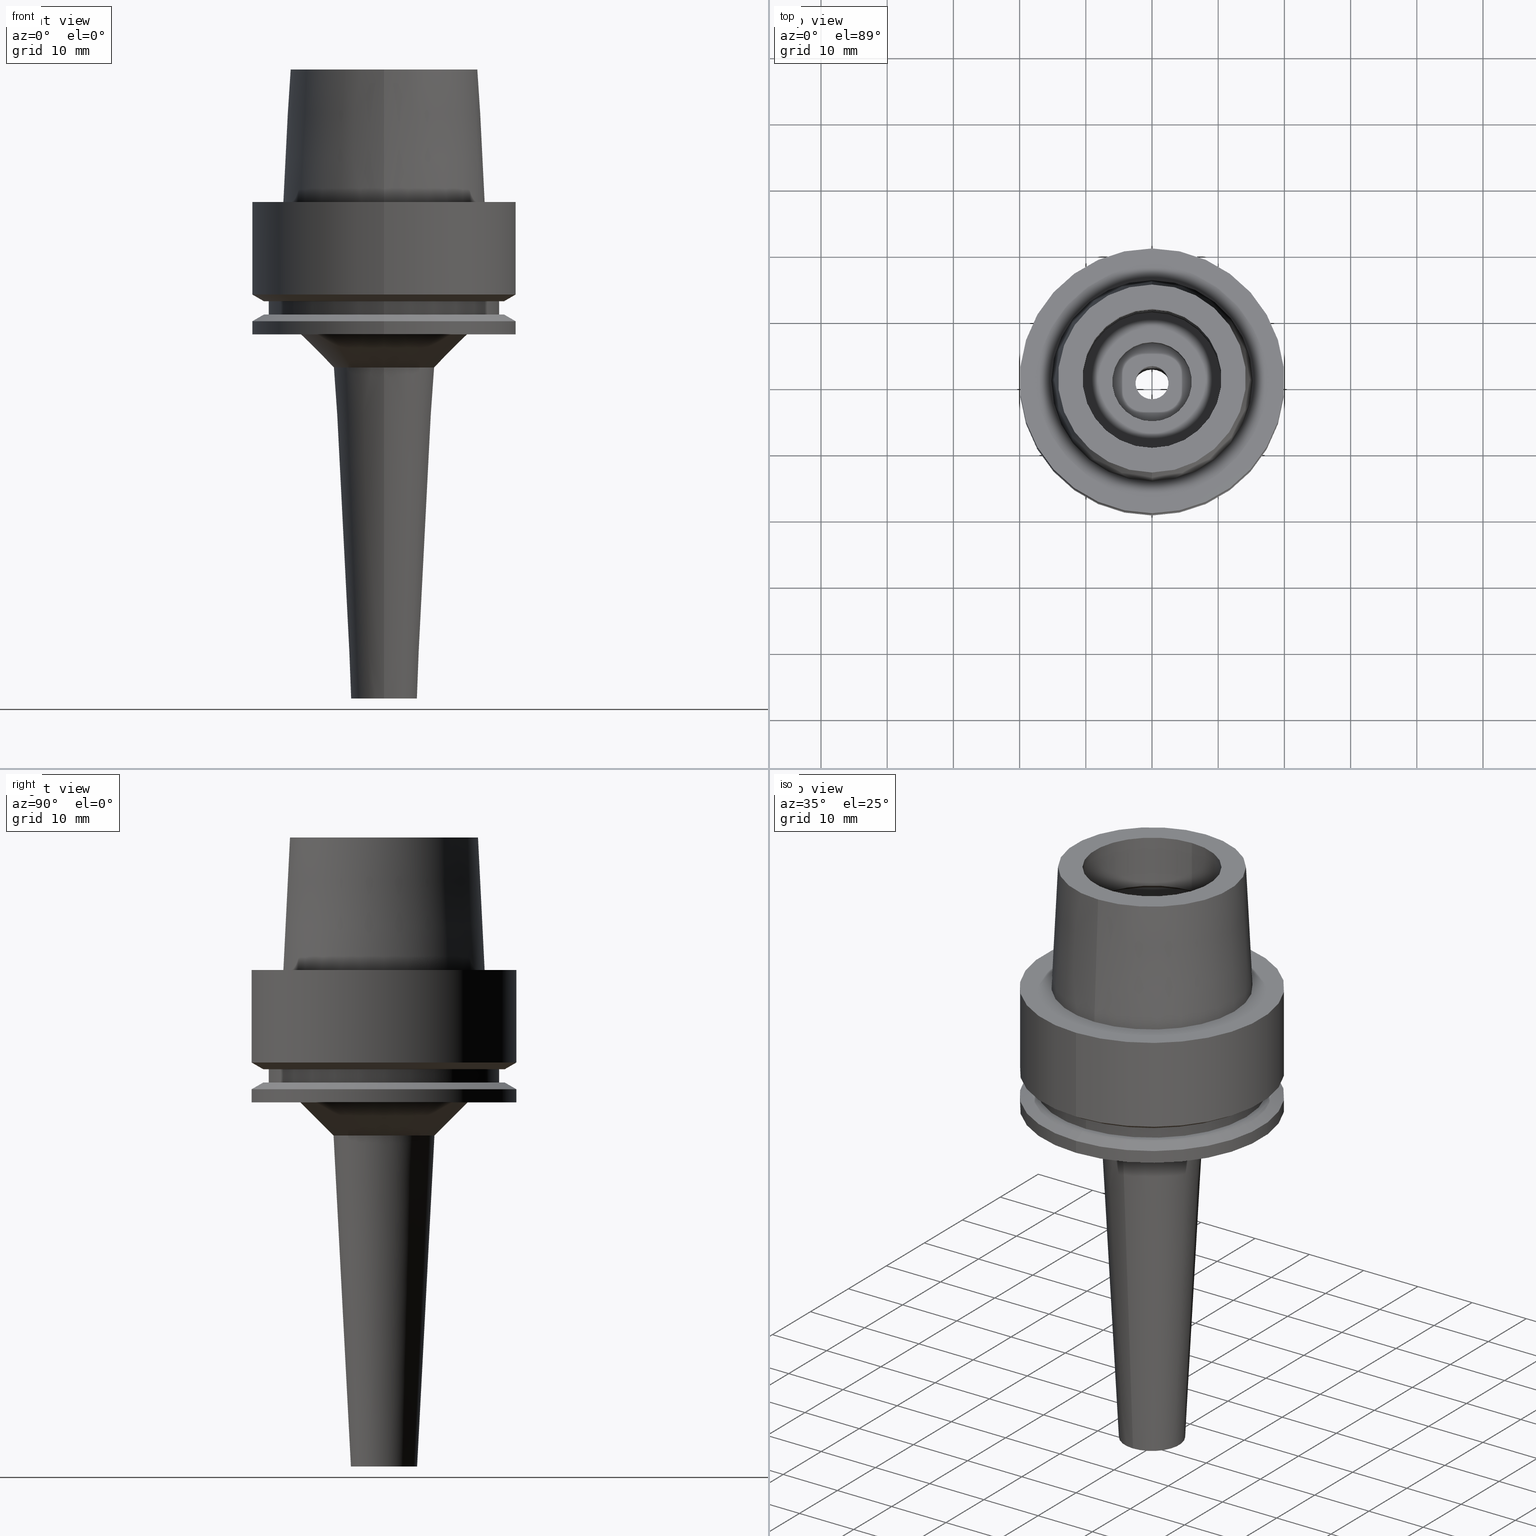
[diagram: canonical four-view strip — front | top / right | iso, engineering-drawing reading convention]
A machine part, canonical four-view strip (front | top / right | iso — engineering-drawing reading convention). The complete STEP part file that produces these views, byte-faithful:
ISO-10303-21;
HEADER;
FILE_DESCRIPTION((''),'2;1');
FILE_NAME('HSK-E40-SRC6S-75','2018-02-22T',('ykawabe'),(''),
'CREO PARAMETRIC BY PTC INC, 2016380','CREO PARAMETRIC BY PTC INC, 2016380','');
FILE_SCHEMA(('AUTOMOTIVE_DESIGN { 1 0 10303 214 1 1 1 1 }'));
ENDSEC;
DATA;
#17=CARTESIAN_POINT('',(0.E0,0.E0,2.E1));
#18=DIRECTION('',(0.E0,0.E0,-1.E0));
#19=DIRECTION('',(0.E0,-1.E0,0.E0));
#20=AXIS2_PLACEMENT_3D('',#17,#18,#19);
#22=DRAUGHTING_PRE_DEFINED_CURVE_FONT('continuous');
#23=CURVE_STYLE('',#22,POSITIVE_LENGTH_MEASURE(2.E-2),#4);
#24=PRESENTATION_STYLE_ASSIGNMENT((#23));
#25=STYLED_ITEM('',(#24),#21);
#26=CARTESIAN_POINT('',(0.E0,0.E0,2.E1));
#27=DIRECTION('',(0.E0,0.E0,-1.E0));
#28=DIRECTION('',(0.E0,1.E0,0.E0));
#29=AXIS2_PLACEMENT_3D('',#26,#27,#28);
#31=CURVE_STYLE('',#22,POSITIVE_LENGTH_MEASURE(2.E-2),#4);
#32=PRESENTATION_STYLE_ASSIGNMENT((#31));
#33=STYLED_ITEM('',(#32),#30);
#34=CARTESIAN_POINT('',(0.E0,0.E0,2.E1));
#35=DIRECTION('',(0.E0,0.E0,1.E0));
#36=DIRECTION('',(0.E0,-1.E0,0.E0));
#37=AXIS2_PLACEMENT_3D('',#34,#35,#36);
#39=CURVE_STYLE('',#22,POSITIVE_LENGTH_MEASURE(2.E-2),#4);
#40=PRESENTATION_STYLE_ASSIGNMENT((#39));
#41=STYLED_ITEM('',(#40),#38);
#42=CARTESIAN_POINT('',(0.E0,0.E0,2.E1));
#43=DIRECTION('',(0.E0,0.E0,1.E0));
#44=DIRECTION('',(0.E0,1.E0,0.E0));
#45=AXIS2_PLACEMENT_3D('',#42,#43,#44);
#47=CURVE_STYLE('',#22,POSITIVE_LENGTH_MEASURE(2.E-2),#4);
#48=PRESENTATION_STYLE_ASSIGNMENT((#47));
#49=STYLED_ITEM('',(#48),#46);
#50=DIRECTION('',(0.E0,-4.993752584497E-2,-9.987523434328E-1));
#51=VECTOR('',#50,2.002498430317E1);
#52=CARTESIAN_POINT('',(0.E0,-1.420000146306E1,2.E1));
#53=LINE('',#52,#51);
#54=CURVE_STYLE('',#22,POSITIVE_LENGTH_MEASURE(2.E-2),#4);
#55=PRESENTATION_STYLE_ASSIGNMENT((#54));
#56=STYLED_ITEM('',(#55),#53);
#57=DIRECTION('',(0.E0,4.993752584497E-2,-9.987523434328E-1));
#58=VECTOR('',#57,2.002498430317E1);
#59=CARTESIAN_POINT('',(0.E0,1.420000146306E1,2.E1));
#60=LINE('',#59,#58);
#61=CURVE_STYLE('',#22,POSITIVE_LENGTH_MEASURE(2.E-2),#4);
#62=PRESENTATION_STYLE_ASSIGNMENT((#61));
#63=STYLED_ITEM('',(#62),#60);
#64=CARTESIAN_POINT('',(0.E0,0.E0,0.E0));
#65=DIRECTION('',(0.E0,0.E0,-1.E0));
#66=DIRECTION('',(0.E0,-1.E0,0.E0));
#67=AXIS2_PLACEMENT_3D('',#64,#65,#66);
#69=CURVE_STYLE('',#22,POSITIVE_LENGTH_MEASURE(2.E-2),#4);
#70=PRESENTATION_STYLE_ASSIGNMENT((#69));
#71=STYLED_ITEM('',(#70),#68);
#72=CARTESIAN_POINT('',(0.E0,0.E0,0.E0));
#73=DIRECTION('',(0.E0,0.E0,-1.E0));
#74=DIRECTION('',(0.E0,1.E0,0.E0));
#75=AXIS2_PLACEMENT_3D('',#72,#73,#74);
#77=CURVE_STYLE('',#22,POSITIVE_LENGTH_MEASURE(2.E-2),#4);
#78=PRESENTATION_STYLE_ASSIGNMENT((#77));
#79=STYLED_ITEM('',(#78),#76);
#80=CARTESIAN_POINT('',(0.E0,0.E0,6.821210263297E-13));
#81=DIRECTION('',(0.E0,0.E0,1.E0));
#82=DIRECTION('',(0.E0,-1.E0,0.E0));
#83=AXIS2_PLACEMENT_3D('',#80,#81,#82);
#85=CURVE_STYLE('',#22,POSITIVE_LENGTH_MEASURE(2.E-2),#4);
#86=PRESENTATION_STYLE_ASSIGNMENT((#85));
#87=STYLED_ITEM('',(#86),#84);
#88=CARTESIAN_POINT('',(0.E0,0.E0,6.821210263297E-13));
#89=DIRECTION('',(0.E0,0.E0,1.E0));
#90=DIRECTION('',(0.E0,1.E0,0.E0));
#91=AXIS2_PLACEMENT_3D('',#88,#89,#90);
#93=CURVE_STYLE('',#22,POSITIVE_LENGTH_MEASURE(2.E-2),#4);
#94=PRESENTATION_STYLE_ASSIGNMENT((#93));
#95=STYLED_ITEM('',(#94),#92);
#96=DIRECTION('',(0.E0,-2.439758400999E-14,-1.E0));
#97=VECTOR('',#96,1.397927405538E1);
#98=CARTESIAN_POINT('',(0.E0,-2.E1,0.E0));
#99=LINE('',#98,#97);
#100=CURVE_STYLE('',#22,POSITIVE_LENGTH_MEASURE(2.E-2),#4);
#101=PRESENTATION_STYLE_ASSIGNMENT((#100));
#102=STYLED_ITEM('',(#101),#99);
#103=DIRECTION('',(0.E0,2.439758400999E-14,-1.E0));
#104=VECTOR('',#103,1.397927405538E1);
#105=CARTESIAN_POINT('',(0.E0,2.E1,0.E0));
#106=LINE('',#105,#104);
#107=CURVE_STYLE('',#22,POSITIVE_LENGTH_MEASURE(2.E-2),#4);
#108=PRESENTATION_STYLE_ASSIGNMENT((#107));
#109=STYLED_ITEM('',(#108),#106);
#110=DIRECTION('',(0.E0,-8.660254037842E-1,-5.000000000005E-1));
#111=VECTOR('',#110,2.041451889235E0);
#112=CARTESIAN_POINT('',(0.E0,2.E1,-1.397927405538E1));
#113=LINE('',#112,#111);
#114=CURVE_STYLE('',#22,POSITIVE_LENGTH_MEASURE(2.E-2),#4);
#115=PRESENTATION_STYLE_ASSIGNMENT((#114));
#116=STYLED_ITEM('',(#115),#113);
#117=CARTESIAN_POINT('',(0.E0,0.E0,-1.397927405538E1));
#118=DIRECTION('',(0.E0,0.E0,1.E0));
#119=DIRECTION('',(0.E0,-1.E0,0.E0));
#120=AXIS2_PLACEMENT_3D('',#117,#118,#119);
#122=CURVE_STYLE('',#22,POSITIVE_LENGTH_MEASURE(2.E-2),#4);
#123=PRESENTATION_STYLE_ASSIGNMENT((#122));
#124=STYLED_ITEM('',(#123),#121);
#125=CARTESIAN_POINT('',(0.E0,0.E0,-1.397927405538E1));
#126=DIRECTION('',(0.E0,0.E0,1.E0));
#127=DIRECTION('',(0.E0,1.E0,0.E0));
#128=AXIS2_PLACEMENT_3D('',#125,#126,#127);
#130=CURVE_STYLE('',#22,POSITIVE_LENGTH_MEASURE(2.E-2),#4);
#131=PRESENTATION_STYLE_ASSIGNMENT((#130));
#132=STYLED_ITEM('',(#131),#129);
#133=DIRECTION('',(0.E0,8.660254037842E-1,-5.000000000005E-1));
#134=VECTOR('',#133,2.041451889235E0);
#135=CARTESIAN_POINT('',(0.E0,-2.E1,-1.397927405538E1));
#136=LINE('',#135,#134);
#137=CURVE_STYLE('',#22,POSITIVE_LENGTH_MEASURE(2.E-2),#4);
#138=PRESENTATION_STYLE_ASSIGNMENT((#137));
#139=STYLED_ITEM('',(#138),#136);
#140=CARTESIAN_POINT('',(0.E0,0.E0,-1.5E1));
#141=DIRECTION('',(0.E0,0.E0,1.E0));
#142=DIRECTION('',(0.E0,-1.E0,0.E0));
#143=AXIS2_PLACEMENT_3D('',#140,#141,#142);
#145=CURVE_STYLE('',#22,POSITIVE_LENGTH_MEASURE(2.E-2),#4);
#146=PRESENTATION_STYLE_ASSIGNMENT((#145));
#147=STYLED_ITEM('',(#146),#144);
#148=CARTESIAN_POINT('',(0.E0,0.E0,-1.5E1));
#149=DIRECTION('',(0.E0,0.E0,1.E0));
#150=DIRECTION('',(0.E0,1.E0,0.E0));
#151=AXIS2_PLACEMENT_3D('',#148,#149,#150);
#153=CURVE_STYLE('',#22,POSITIVE_LENGTH_MEASURE(2.E-2),#4);
#154=PRESENTATION_STYLE_ASSIGNMENT((#153));
#155=STYLED_ITEM('',(#154),#152);
#156=CARTESIAN_POINT('',(0.E0,0.E0,-1.5E1));
#157=DIRECTION('',(0.E0,0.E0,-1.E0));
#158=DIRECTION('',(0.E0,-1.E0,0.E0));
#159=AXIS2_PLACEMENT_3D('',#156,#157,#158);
#161=CURVE_STYLE('',#22,POSITIVE_LENGTH_MEASURE(2.E-2),#4);
#162=PRESENTATION_STYLE_ASSIGNMENT((#161));
#163=STYLED_ITEM('',(#162),#160);
#164=CARTESIAN_POINT('',(0.E0,0.E0,-1.5E1));
#165=DIRECTION('',(0.E0,0.E0,-1.E0));
#166=DIRECTION('',(0.E0,1.E0,0.E0));
#167=AXIS2_PLACEMENT_3D('',#164,#165,#166);
#169=CURVE_STYLE('',#22,POSITIVE_LENGTH_MEASURE(2.E-2),#4);
#170=PRESENTATION_STYLE_ASSIGNMENT((#169));
#171=STYLED_ITEM('',(#170),#168);
#172=DIRECTION('',(0.E0,0.E0,-1.E0));
#173=VECTOR('',#172,2.E0);
#174=CARTESIAN_POINT('',(0.E0,-1.74E1,-1.5E1));
#175=LINE('',#174,#173);
#176=CURVE_STYLE('',#22,POSITIVE_LENGTH_MEASURE(2.E-2),#4);
#177=PRESENTATION_STYLE_ASSIGNMENT((#176));
#178=STYLED_ITEM('',(#177),#175);
#179=DIRECTION('',(0.E0,0.E0,-1.E0));
#180=VECTOR('',#179,2.E0);
#181=CARTESIAN_POINT('',(0.E0,1.74E1,-1.5E1));
#182=LINE('',#181,#180);
#183=CURVE_STYLE('',#22,POSITIVE_LENGTH_MEASURE(2.E-2),#4);
#184=PRESENTATION_STYLE_ASSIGNMENT((#183));
#185=STYLED_ITEM('',(#184),#182);
#186=CARTESIAN_POINT('',(0.E0,0.E0,-1.7E1));
#187=DIRECTION('',(0.E0,0.E0,-1.E0));
#188=DIRECTION('',(0.E0,-1.E0,0.E0));
#189=AXIS2_PLACEMENT_3D('',#186,#187,#188);
#191=CURVE_STYLE('',#22,POSITIVE_LENGTH_MEASURE(2.E-2),#4);
#192=PRESENTATION_STYLE_ASSIGNMENT((#191));
#193=STYLED_ITEM('',(#192),#190);
#194=CARTESIAN_POINT('',(0.E0,0.E0,-1.7E1));
#195=DIRECTION('',(0.E0,0.E0,-1.E0));
#196=DIRECTION('',(0.E0,1.E0,0.E0));
#197=AXIS2_PLACEMENT_3D('',#194,#195,#196);
#199=CURVE_STYLE('',#22,POSITIVE_LENGTH_MEASURE(2.E-2),#4);
#200=PRESENTATION_STYLE_ASSIGNMENT((#199));
#201=STYLED_ITEM('',(#200),#198);
#202=CARTESIAN_POINT('',(0.E0,0.E0,-1.7E1));
#203=DIRECTION('',(0.E0,0.E0,1.E0));
#204=DIRECTION('',(0.E0,-1.E0,0.E0));
#205=AXIS2_PLACEMENT_3D('',#202,#203,#204);
#207=CURVE_STYLE('',#22,POSITIVE_LENGTH_MEASURE(2.E-2),#4);
#208=PRESENTATION_STYLE_ASSIGNMENT((#207));
#209=STYLED_ITEM('',(#208),#206);
#210=CARTESIAN_POINT('',(0.E0,0.E0,-1.7E1));
#211=DIRECTION('',(0.E0,0.E0,1.E0));
#212=DIRECTION('',(0.E0,1.E0,0.E0));
#213=AXIS2_PLACEMENT_3D('',#210,#211,#212);
#215=CURVE_STYLE('',#22,POSITIVE_LENGTH_MEASURE(2.E-2),#4);
#216=PRESENTATION_STYLE_ASSIGNMENT((#215));
#217=STYLED_ITEM('',(#216),#214);
#218=DIRECTION('',(0.E0,-8.660254037842E-1,-5.000000000005E-1));
#219=VECTOR('',#218,2.041451889235E0);
#220=CARTESIAN_POINT('',(0.E0,-1.823205080332E1,-1.7E1));
#221=LINE('',#220,#219);
#222=CURVE_STYLE('',#22,POSITIVE_LENGTH_MEASURE(2.E-2),#4);
#223=PRESENTATION_STYLE_ASSIGNMENT((#222));
#224=STYLED_ITEM('',(#223),#221);
#225=CARTESIAN_POINT('',(0.E0,0.E0,-1.802072594462E1));
#226=DIRECTION('',(0.E0,0.E0,-1.E0));
#227=DIRECTION('',(0.E0,-1.E0,0.E0));
#228=AXIS2_PLACEMENT_3D('',#225,#226,#227);
#230=CURVE_STYLE('',#22,POSITIVE_LENGTH_MEASURE(2.E-2),#4);
#231=PRESENTATION_STYLE_ASSIGNMENT((#230));
#232=STYLED_ITEM('',(#231),#229);
#233=DIRECTION('',(0.E0,8.660254037842E-1,-5.000000000005E-1));
#234=VECTOR('',#233,2.041451889235E0);
#235=CARTESIAN_POINT('',(0.E0,1.823205080332E1,-1.7E1));
#236=LINE('',#235,#234);
#237=CURVE_STYLE('',#22,POSITIVE_LENGTH_MEASURE(2.E-2),#4);
#238=PRESENTATION_STYLE_ASSIGNMENT((#237));
#239=STYLED_ITEM('',(#238),#236);
#240=CARTESIAN_POINT('',(0.E0,0.E0,-1.802072594462E1));
#241=DIRECTION('',(0.E0,0.E0,-1.E0));
#242=DIRECTION('',(0.E0,1.E0,0.E0));
#243=AXIS2_PLACEMENT_3D('',#240,#241,#242);
#245=CURVE_STYLE('',#22,POSITIVE_LENGTH_MEASURE(2.E-2),#4);
#246=PRESENTATION_STYLE_ASSIGNMENT((#245));
#247=STYLED_ITEM('',(#246),#244);
#248=DIRECTION('',(0.E0,-1.723159621265E-13,-1.E0));
#249=VECTOR('',#248,1.979274055381E0);
#250=CARTESIAN_POINT('',(0.E0,2.E1,-1.802072594462E1));
#251=LINE('',#250,#249);
#252=CURVE_STYLE('',#22,POSITIVE_LENGTH_MEASURE(2.E-2),#4);
#253=PRESENTATION_STYLE_ASSIGNMENT((#252));
#254=STYLED_ITEM('',(#253),#251);
#255=DIRECTION('',(0.E0,1.723159621265E-13,-1.E0));
#256=VECTOR('',#255,1.979274055381E0);
#257=CARTESIAN_POINT('',(0.E0,-2.E1,-1.802072594462E1));
#258=LINE('',#257,#256);
#259=CURVE_STYLE('',#22,POSITIVE_LENGTH_MEASURE(2.E-2),#4);
#260=PRESENTATION_STYLE_ASSIGNMENT((#259));
#261=STYLED_ITEM('',(#260),#258);
#262=CARTESIAN_POINT('',(0.E0,0.E0,-2.E1));
#263=DIRECTION('',(0.E0,0.E0,1.E0));
#264=DIRECTION('',(0.E0,-1.E0,0.E0));
#265=AXIS2_PLACEMENT_3D('',#262,#263,#264);
#267=CURVE_STYLE('',#22,POSITIVE_LENGTH_MEASURE(2.E-2),#4);
#268=PRESENTATION_STYLE_ASSIGNMENT((#267));
#269=STYLED_ITEM('',(#268),#266);
#270=CARTESIAN_POINT('',(0.E0,0.E0,-2.E1));
#271=DIRECTION('',(0.E0,0.E0,1.E0));
#272=DIRECTION('',(0.E0,1.E0,0.E0));
#273=AXIS2_PLACEMENT_3D('',#270,#271,#272);
#275=CURVE_STYLE('',#22,POSITIVE_LENGTH_MEASURE(2.E-2),#4);
#276=PRESENTATION_STYLE_ASSIGNMENT((#275));
#277=STYLED_ITEM('',(#276),#274);
#278=CARTESIAN_POINT('',(0.E0,0.E0,-2.E1));
#279=DIRECTION('',(0.E0,0.E0,-1.E0));
#280=DIRECTION('',(0.E0,-1.E0,0.E0));
#281=AXIS2_PLACEMENT_3D('',#278,#279,#280);
#283=CURVE_STYLE('',#22,POSITIVE_LENGTH_MEASURE(2.E-2),#4);
#284=PRESENTATION_STYLE_ASSIGNMENT((#283));
#285=STYLED_ITEM('',(#284),#282);
#286=CARTESIAN_POINT('',(0.E0,0.E0,-2.E1));
#287=DIRECTION('',(0.E0,0.E0,-1.E0));
#288=DIRECTION('',(0.E0,1.E0,0.E0));
#289=AXIS2_PLACEMENT_3D('',#286,#287,#288);
#291=CURVE_STYLE('',#22,POSITIVE_LENGTH_MEASURE(2.E-2),#4);
#292=PRESENTATION_STYLE_ASSIGNMENT((#291));
#293=STYLED_ITEM('',(#292),#290);
#294=DIRECTION('',(0.E0,7.071067811865E-1,-7.071067811866E-1));
#295=VECTOR('',#294,7.071067811864E0);
#296=CARTESIAN_POINT('',(0.E0,-1.262038896415E1,-2.E1));
#297=LINE('',#296,#295);
#298=CURVE_STYLE('',#22,POSITIVE_LENGTH_MEASURE(2.E-2),#4);
#299=PRESENTATION_STYLE_ASSIGNMENT((#298));
#300=STYLED_ITEM('',(#299),#297);
#301=CARTESIAN_POINT('',(0.E0,0.E0,-2.5E1));
#302=DIRECTION('',(0.E0,0.E0,-1.E0));
#303=DIRECTION('',(0.E0,-1.E0,0.E0));
#304=AXIS2_PLACEMENT_3D('',#301,#302,#303);
#306=CURVE_STYLE('',#22,POSITIVE_LENGTH_MEASURE(2.E-2),#4);
#307=PRESENTATION_STYLE_ASSIGNMENT((#306));
#308=STYLED_ITEM('',(#307),#305);
#309=DIRECTION('',(0.E0,-7.071067811865E-1,-7.071067811866E-1));
#310=VECTOR('',#309,7.071067811864E0);
#311=CARTESIAN_POINT('',(0.E0,1.262038896415E1,-2.E1));
#312=LINE('',#311,#310);
#313=CURVE_STYLE('',#22,POSITIVE_LENGTH_MEASURE(2.E-2),#4);
#314=PRESENTATION_STYLE_ASSIGNMENT((#313));
#315=STYLED_ITEM('',(#314),#312);
#316=DIRECTION('',(0.E0,-5.233595624293E-2,-9.986295347546E-1));
#317=VECTOR('',#316,5.006861729990E1);
#318=CARTESIAN_POINT('',(0.E0,7.620388964152E0,-2.5E1));
#319=LINE('',#318,#317);
#320=CURVE_STYLE('',#22,POSITIVE_LENGTH_MEASURE(2.E-2),#4);
#321=PRESENTATION_STYLE_ASSIGNMENT((#320));
#322=STYLED_ITEM('',(#321),#319);
#323=CARTESIAN_POINT('',(0.E0,0.E0,-2.5E1));
#324=DIRECTION('',(0.E0,0.E0,1.E0));
#325=DIRECTION('',(0.E0,-1.E0,0.E0));
#326=AXIS2_PLACEMENT_3D('',#323,#324,#325);
#328=CURVE_STYLE('',#22,POSITIVE_LENGTH_MEASURE(2.E-2),#4);
#329=PRESENTATION_STYLE_ASSIGNMENT((#328));
#330=STYLED_ITEM('',(#329),#327);
#331=DIRECTION('',(0.E0,5.233595624293E-2,-9.986295347546E-1));
#332=VECTOR('',#331,5.006861729990E1);
#333=CARTESIAN_POINT('',(0.E0,-7.620388964152E0,-2.5E1));
#334=LINE('',#333,#332);
#335=CURVE_STYLE('',#22,POSITIVE_LENGTH_MEASURE(2.E-2),#4);
#336=PRESENTATION_STYLE_ASSIGNMENT((#335));
#337=STYLED_ITEM('',(#336),#334);
#338=CARTESIAN_POINT('',(0.E0,0.E0,-7.5E1));
#339=DIRECTION('',(0.E0,0.E0,1.E0));
#340=DIRECTION('',(0.E0,-1.E0,0.E0));
#341=AXIS2_PLACEMENT_3D('',#338,#339,#340);
#343=CURVE_STYLE('',#22,POSITIVE_LENGTH_MEASURE(2.E-2),#4);
#344=PRESENTATION_STYLE_ASSIGNMENT((#343));
#345=STYLED_ITEM('',(#344),#342);
#346=CARTESIAN_POINT('',(0.E0,0.E0,-7.5E1));
#347=DIRECTION('',(0.E0,0.E0,1.E0));
#348=DIRECTION('',(0.E0,1.E0,0.E0));
#349=AXIS2_PLACEMENT_3D('',#346,#347,#348);
#351=CURVE_STYLE('',#22,POSITIVE_LENGTH_MEASURE(2.E-2),#4);
#352=PRESENTATION_STYLE_ASSIGNMENT((#351));
#353=STYLED_ITEM('',(#352),#350);
#354=CARTESIAN_POINT('',(0.E0,0.E0,-7.5E1));
#355=DIRECTION('',(0.E0,0.E0,-1.E0));
#356=DIRECTION('',(0.E0,-1.E0,0.E0));
#357=AXIS2_PLACEMENT_3D('',#354,#355,#356);
#359=CURVE_STYLE('',#22,POSITIVE_LENGTH_MEASURE(2.E-2),#4);
#360=PRESENTATION_STYLE_ASSIGNMENT((#359));
#361=STYLED_ITEM('',(#360),#358);
#362=CARTESIAN_POINT('',(0.E0,0.E0,-7.5E1));
#363=DIRECTION('',(0.E0,0.E0,-1.E0));
#364=DIRECTION('',(0.E0,1.E0,0.E0));
#365=AXIS2_PLACEMENT_3D('',#362,#363,#364);
#367=CURVE_STYLE('',#22,POSITIVE_LENGTH_MEASURE(2.E-2),#4);
#368=PRESENTATION_STYLE_ASSIGNMENT((#367));
#369=STYLED_ITEM('',(#368),#366);
#370=DIRECTION('',(0.E0,0.E0,1.E0));
#371=VECTOR('',#370,2.64E1);
#372=CARTESIAN_POINT('',(0.E0,-3.E0,-7.5E1));
#373=LINE('',#372,#371);
#374=CURVE_STYLE('',#22,POSITIVE_LENGTH_MEASURE(2.E-2),#4);
#375=PRESENTATION_STYLE_ASSIGNMENT((#374));
#376=STYLED_ITEM('',(#375),#373);
#377=DIRECTION('',(0.E0,0.E0,1.E0));
#378=VECTOR('',#377,2.64E1);
#379=CARTESIAN_POINT('',(0.E0,3.E0,-7.5E1));
#380=LINE('',#379,#378);
#381=CURVE_STYLE('',#22,POSITIVE_LENGTH_MEASURE(2.E-2),#4);
#382=PRESENTATION_STYLE_ASSIGNMENT((#381));
#383=STYLED_ITEM('',(#382),#380);
#384=CARTESIAN_POINT('',(0.E0,0.E0,-4.86E1));
#385=DIRECTION('',(0.E0,0.E0,-1.E0));
#386=DIRECTION('',(0.E0,-1.E0,0.E0));
#387=AXIS2_PLACEMENT_3D('',#384,#385,#386);
#389=CURVE_STYLE('',#22,POSITIVE_LENGTH_MEASURE(2.E-2),#4);
#390=PRESENTATION_STYLE_ASSIGNMENT((#389));
#391=STYLED_ITEM('',(#390),#388);
#392=CARTESIAN_POINT('',(0.E0,0.E0,-4.86E1));
#393=DIRECTION('',(0.E0,0.E0,-1.E0));
#394=DIRECTION('',(0.E0,1.E0,0.E0));
#395=AXIS2_PLACEMENT_3D('',#392,#393,#394);
#397=CURVE_STYLE('',#22,POSITIVE_LENGTH_MEASURE(2.E-2),#4);
#398=PRESENTATION_STYLE_ASSIGNMENT((#397));
#399=STYLED_ITEM('',(#398),#396);
#400=CARTESIAN_POINT('',(0.E0,0.E0,-4.86E1));
#401=DIRECTION('',(0.E0,0.E0,1.E0));
#402=DIRECTION('',(0.E0,-1.E0,0.E0));
#403=AXIS2_PLACEMENT_3D('',#400,#401,#402);
#405=CURVE_STYLE('',#22,POSITIVE_LENGTH_MEASURE(2.E-2),#4);
#406=PRESENTATION_STYLE_ASSIGNMENT((#405));
#407=STYLED_ITEM('',(#406),#404);
#408=CARTESIAN_POINT('',(0.E0,0.E0,-4.86E1));
#409=DIRECTION('',(0.E0,0.E0,1.E0));
#410=DIRECTION('',(0.E0,1.E0,0.E0));
#411=AXIS2_PLACEMENT_3D('',#408,#409,#410);
#413=CURVE_STYLE('',#22,POSITIVE_LENGTH_MEASURE(2.E-2),#4);
#414=PRESENTATION_STYLE_ASSIGNMENT((#413));
#415=STYLED_ITEM('',(#414),#412);
#416=DIRECTION('',(0.E0,0.E0,1.E0));
#417=VECTOR('',#416,2.56E1);
#418=CARTESIAN_POINT('',(0.E0,-3.25E0,-4.86E1));
#419=LINE('',#418,#417);
#420=CURVE_STYLE('',#22,POSITIVE_LENGTH_MEASURE(2.E-2),#4);
#421=PRESENTATION_STYLE_ASSIGNMENT((#420));
#422=STYLED_ITEM('',(#421),#419);
#423=DIRECTION('',(0.E0,0.E0,1.E0));
#424=VECTOR('',#423,2.56E1);
#425=CARTESIAN_POINT('',(0.E0,3.25E0,-4.86E1));
#426=LINE('',#425,#424);
#427=CURVE_STYLE('',#22,POSITIVE_LENGTH_MEASURE(2.E-2),#4);
#428=PRESENTATION_STYLE_ASSIGNMENT((#427));
#429=STYLED_ITEM('',(#428),#426);
#430=CARTESIAN_POINT('',(0.E0,0.E0,-2.3E1));
#431=DIRECTION('',(0.E0,0.E0,1.E0));
#432=DIRECTION('',(0.E0,-1.E0,0.E0));
#433=AXIS2_PLACEMENT_3D('',#430,#431,#432);
#435=CURVE_STYLE('',#22,POSITIVE_LENGTH_MEASURE(2.E-2),#4);
#436=PRESENTATION_STYLE_ASSIGNMENT((#435));
#437=STYLED_ITEM('',(#436),#434);
#438=CARTESIAN_POINT('',(0.E0,0.E0,-2.3E1));
#439=DIRECTION('',(0.E0,0.E0,1.E0));
#440=DIRECTION('',(0.E0,1.E0,0.E0));
#441=AXIS2_PLACEMENT_3D('',#438,#439,#440);
#443=CURVE_STYLE('',#22,POSITIVE_LENGTH_MEASURE(2.E-2),#4);
#444=PRESENTATION_STYLE_ASSIGNMENT((#443));
#445=STYLED_ITEM('',(#444),#442);
#446=CARTESIAN_POINT('',(0.E0,0.E0,-2.3E1));
#447=DIRECTION('',(0.E0,0.E0,-1.E0));
#448=DIRECTION('',(0.E0,-1.E0,0.E0));
#449=AXIS2_PLACEMENT_3D('',#446,#447,#448);
#451=CURVE_STYLE('',#22,POSITIVE_LENGTH_MEASURE(2.E-2),#4);
#452=PRESENTATION_STYLE_ASSIGNMENT((#451));
#453=STYLED_ITEM('',(#452),#450);
#454=CARTESIAN_POINT('',(0.E0,0.E0,-2.3E1));
#455=DIRECTION('',(0.E0,0.E0,-1.E0));
#456=DIRECTION('',(0.E0,1.E0,0.E0));
#457=AXIS2_PLACEMENT_3D('',#454,#455,#456);
#459=CURVE_STYLE('',#22,POSITIVE_LENGTH_MEASURE(2.E-2),#4);
#460=PRESENTATION_STYLE_ASSIGNMENT((#459));
#461=STYLED_ITEM('',(#460),#458);
#462=DIRECTION('',(0.E0,0.E0,1.E0));
#463=VECTOR('',#462,7.05E0);
#464=CARTESIAN_POINT('',(0.E0,-2.5E0,-2.3E1));
#465=LINE('',#464,#463);
#466=CURVE_STYLE('',#22,POSITIVE_LENGTH_MEASURE(2.E-2),#4);
#467=PRESENTATION_STYLE_ASSIGNMENT((#466));
#468=STYLED_ITEM('',(#467),#465);
#469=DIRECTION('',(0.E0,0.E0,1.E0));
#470=VECTOR('',#469,7.05E0);
#471=CARTESIAN_POINT('',(0.E0,2.5E0,-2.3E1));
#472=LINE('',#471,#470);
#473=CURVE_STYLE('',#22,POSITIVE_LENGTH_MEASURE(2.E-2),#4);
#474=PRESENTATION_STYLE_ASSIGNMENT((#473));
#475=STYLED_ITEM('',(#474),#472);
#476=CARTESIAN_POINT('',(0.E0,0.E0,-1.595E1));
#477=DIRECTION('',(0.E0,0.E0,-1.E0));
#478=DIRECTION('',(0.E0,-1.E0,0.E0));
#479=AXIS2_PLACEMENT_3D('',#476,#477,#478);
#481=CURVE_STYLE('',#22,POSITIVE_LENGTH_MEASURE(2.E-2),#4);
#482=PRESENTATION_STYLE_ASSIGNMENT((#481));
#483=STYLED_ITEM('',(#482),#480);
#484=CARTESIAN_POINT('',(0.E0,0.E0,-1.595E1));
#485=DIRECTION('',(0.E0,0.E0,-1.E0));
#486=DIRECTION('',(0.E0,1.E0,0.E0));
#487=AXIS2_PLACEMENT_3D('',#484,#485,#486);
#489=CURVE_STYLE('',#22,POSITIVE_LENGTH_MEASURE(2.E-2),#4);
#490=PRESENTATION_STYLE_ASSIGNMENT((#489));
#491=STYLED_ITEM('',(#490),#488);
#492=CARTESIAN_POINT('',(0.E0,0.E0,-1.595E1));
#493=DIRECTION('',(0.E0,0.E0,1.E0));
#494=DIRECTION('',(0.E0,-1.E0,0.E0));
#495=AXIS2_PLACEMENT_3D('',#492,#493,#494);
#497=CURVE_STYLE('',#22,POSITIVE_LENGTH_MEASURE(2.E-2),#4);
#498=PRESENTATION_STYLE_ASSIGNMENT((#497));
#499=STYLED_ITEM('',(#498),#496);
#500=CARTESIAN_POINT('',(0.E0,0.E0,-1.595E1));
#501=DIRECTION('',(0.E0,0.E0,1.E0));
#502=DIRECTION('',(0.E0,1.E0,0.E0));
#503=AXIS2_PLACEMENT_3D('',#500,#501,#502);
#505=CURVE_STYLE('',#22,POSITIVE_LENGTH_MEASURE(2.E-2),#4);
#506=PRESENTATION_STYLE_ASSIGNMENT((#505));
#507=STYLED_ITEM('',(#506),#504);
#508=DIRECTION('',(0.E0,0.E0,1.E0));
#509=VECTOR('',#508,8.E0);
#510=CARTESIAN_POINT('',(0.E0,-6.E0,-1.595E1));
#511=LINE('',#510,#509);
#512=CURVE_STYLE('',#22,POSITIVE_LENGTH_MEASURE(2.E-2),#4);
#513=PRESENTATION_STYLE_ASSIGNMENT((#512));
#514=STYLED_ITEM('',(#513),#511);
#515=DIRECTION('',(0.E0,0.E0,1.E0));
#516=VECTOR('',#515,8.E0);
#517=CARTESIAN_POINT('',(0.E0,6.E0,-1.595E1));
#518=LINE('',#517,#516);
#519=CURVE_STYLE('',#22,POSITIVE_LENGTH_MEASURE(2.E-2),#4);
#520=PRESENTATION_STYLE_ASSIGNMENT((#519));
#521=STYLED_ITEM('',(#520),#518);
#522=CARTESIAN_POINT('',(0.E0,0.E0,-7.95E0));
#523=DIRECTION('',(0.E0,0.E0,-1.E0));
#524=DIRECTION('',(0.E0,-1.E0,0.E0));
#525=AXIS2_PLACEMENT_3D('',#522,#523,#524);
#527=CURVE_STYLE('',#22,POSITIVE_LENGTH_MEASURE(2.E-2),#4);
#528=PRESENTATION_STYLE_ASSIGNMENT((#527));
#529=STYLED_ITEM('',(#528),#526);
#530=CARTESIAN_POINT('',(0.E0,0.E0,-7.95E0));
#531=DIRECTION('',(0.E0,0.E0,-1.E0));
#532=DIRECTION('',(0.E0,1.E0,0.E0));
#533=AXIS2_PLACEMENT_3D('',#530,#531,#532);
#535=CURVE_STYLE('',#22,POSITIVE_LENGTH_MEASURE(2.E-2),#4);
#536=PRESENTATION_STYLE_ASSIGNMENT((#535));
#537=STYLED_ITEM('',(#536),#534);
#538=CARTESIAN_POINT('',(0.E0,0.E0,-7.95E0));
#539=DIRECTION('',(0.E0,0.E0,1.E0));
#540=DIRECTION('',(0.E0,-1.E0,0.E0));
#541=AXIS2_PLACEMENT_3D('',#538,#539,#540);
#543=CURVE_STYLE('',#22,POSITIVE_LENGTH_MEASURE(2.E-2),#4);
#544=PRESENTATION_STYLE_ASSIGNMENT((#543));
#545=STYLED_ITEM('',(#544),#542);
#546=CARTESIAN_POINT('',(0.E0,0.E0,-7.95E0));
#547=DIRECTION('',(0.E0,0.E0,1.E0));
#548=DIRECTION('',(0.E0,1.E0,0.E0));
#549=AXIS2_PLACEMENT_3D('',#546,#547,#548);
#551=CURVE_STYLE('',#22,POSITIVE_LENGTH_MEASURE(2.E-2),#4);
#552=PRESENTATION_STYLE_ASSIGNMENT((#551));
#553=STYLED_ITEM('',(#552),#550);
#554=DIRECTION('',(0.E0,0.E0,1.E0));
#555=VECTOR('',#554,7.95E0);
#556=CARTESIAN_POINT('',(0.E0,-1.05E1,-7.95E0));
#557=LINE('',#556,#555);
#558=CURVE_STYLE('',#22,POSITIVE_LENGTH_MEASURE(2.E-2),#4);
#559=PRESENTATION_STYLE_ASSIGNMENT((#558));
#560=STYLED_ITEM('',(#559),#557);
#561=CARTESIAN_POINT('',(0.E0,0.E0,0.E0));
#562=DIRECTION('',(0.E0,0.E0,-1.E0));
#563=DIRECTION('',(0.E0,-1.E0,0.E0));
#564=AXIS2_PLACEMENT_3D('',#561,#562,#563);
#566=CURVE_STYLE('',#22,POSITIVE_LENGTH_MEASURE(2.E-2),#4);
#567=PRESENTATION_STYLE_ASSIGNMENT((#566));
#568=STYLED_ITEM('',(#567),#565);
#569=DIRECTION('',(0.E0,0.E0,1.E0));
#570=VECTOR('',#569,7.95E0);
#571=CARTESIAN_POINT('',(0.E0,1.05E1,-7.95E0));
#572=LINE('',#571,#570);
#573=CURVE_STYLE('',#22,POSITIVE_LENGTH_MEASURE(2.E-2),#4);
#574=PRESENTATION_STYLE_ASSIGNMENT((#573));
#575=STYLED_ITEM('',(#574),#572);
#576=DIRECTION('',(0.E0,-1.416080254367E-13,1.E0));
#577=VECTOR('',#576,5.017672787747E-2);
#578=CARTESIAN_POINT('',(0.E0,1.05E1,0.E0));
#579=LINE('',#578,#577);
#580=CURVE_STYLE('',#22,POSITIVE_LENGTH_MEASURE(2.E-2),#4);
#581=PRESENTATION_STYLE_ASSIGNMENT((#580));
#582=STYLED_ITEM('',(#581),#579);
#583=CARTESIAN_POINT('',(0.E0,0.E0,0.E0));
#584=DIRECTION('',(0.E0,0.E0,1.E0));
#585=DIRECTION('',(0.E0,-1.E0,0.E0));
#586=AXIS2_PLACEMENT_3D('',#583,#584,#585);
#588=CURVE_STYLE('',#22,POSITIVE_LENGTH_MEASURE(2.E-2),#4);
#589=PRESENTATION_STYLE_ASSIGNMENT((#588));
#590=STYLED_ITEM('',(#589),#587);
#591=DIRECTION('',(0.E0,1.416080254367E-13,1.E0));
#592=VECTOR('',#591,5.017672787747E-2);
#593=CARTESIAN_POINT('',(0.E0,-1.05E1,0.E0));
#594=LINE('',#593,#592);
#595=CURVE_STYLE('',#22,POSITIVE_LENGTH_MEASURE(2.E-2),#4);
#596=PRESENTATION_STYLE_ASSIGNMENT((#595));
#597=STYLED_ITEM('',(#596),#594);
#598=CARTESIAN_POINT('',(0.E0,0.E0,5.017672787747E-2));
#599=DIRECTION('',(0.E0,0.E0,1.E0));
#600=DIRECTION('',(0.E0,1.E0,0.E0));
#601=AXIS2_PLACEMENT_3D('',#598,#599,#600);
#603=CURVE_STYLE('',#22,POSITIVE_LENGTH_MEASURE(2.E-2),#4);
#604=PRESENTATION_STYLE_ASSIGNMENT((#603));
#605=STYLED_ITEM('',(#604),#602);
#606=CARTESIAN_POINT('',(0.E0,-7.75E0,4.226E0));
#607=DIRECTION('',(-1.E0,0.E0,0.E0));
#608=DIRECTION('',(0.E0,-5.5E-1,-8.351646544245E-1));
#609=AXIS2_PLACEMENT_3D('',#606,#607,#608);
#611=CURVE_STYLE('',#22,POSITIVE_LENGTH_MEASURE(2.E-2),#4);
#612=PRESENTATION_STYLE_ASSIGNMENT((#611));
#613=STYLED_ITEM('',(#612),#610);
#614=CARTESIAN_POINT('',(0.E0,0.E0,4.226E0));
#615=DIRECTION('',(0.E0,0.E0,-1.E0));
#616=DIRECTION('',(0.E0,-1.E0,0.E0));
#617=AXIS2_PLACEMENT_3D('',#614,#615,#616);
#619=CURVE_STYLE('',#22,POSITIVE_LENGTH_MEASURE(2.E-2),#4);
#620=PRESENTATION_STYLE_ASSIGNMENT((#619));
#621=STYLED_ITEM('',(#620),#618);
#622=CARTESIAN_POINT('',(0.E0,7.75E0,4.226E0));
#623=DIRECTION('',(1.E0,0.E0,0.E0));
#624=DIRECTION('',(0.E0,5.5E-1,-8.351646544245E-1));
#625=AXIS2_PLACEMENT_3D('',#622,#623,#624);
#627=CURVE_STYLE('',#22,POSITIVE_LENGTH_MEASURE(2.E-2),#4);
#628=PRESENTATION_STYLE_ASSIGNMENT((#627));
#629=STYLED_ITEM('',(#628),#626);
#630=CARTESIAN_POINT('',(0.E0,0.E0,4.226E0));
#631=DIRECTION('',(0.E0,0.E0,-1.E0));
#632=DIRECTION('',(0.E0,1.E0,0.E0));
#633=AXIS2_PLACEMENT_3D('',#630,#631,#632);
#635=CURVE_STYLE('',#22,POSITIVE_LENGTH_MEASURE(2.E-2),#4);
#636=PRESENTATION_STYLE_ASSIGNMENT((#635));
#637=STYLED_ITEM('',(#636),#634);
#638=CARTESIAN_POINT('',(0.E0,0.E0,5.017672787747E-2));
#639=DIRECTION('',(0.E0,0.E0,1.E0));
#640=DIRECTION('',(0.E0,-1.E0,0.E0));
#641=AXIS2_PLACEMENT_3D('',#638,#639,#640);
#643=CURVE_STYLE('',#22,POSITIVE_LENGTH_MEASURE(2.E-2),#4);
#644=PRESENTATION_STYLE_ASSIGNMENT((#643));
#645=STYLED_ITEM('',(#644),#642);
#646=DIRECTION('',(0.E0,5.489095069966E-14,1.E0));
#647=VECTOR('',#646,6.472312163511E0);
#648=CARTESIAN_POINT('',(0.E0,1.275E1,4.226E0));
#649=LINE('',#648,#647);
#650=CURVE_STYLE('',#22,POSITIVE_LENGTH_MEASURE(2.E-2),#4);
#651=PRESENTATION_STYLE_ASSIGNMENT((#650));
#652=STYLED_ITEM('',(#651),#649);
#653=DIRECTION('',(0.E0,-5.489095069966E-14,1.E0));
#654=VECTOR('',#653,6.472312163511E0);
#655=CARTESIAN_POINT('',(0.E0,-1.275E1,4.226E0));
#656=LINE('',#655,#654);
#657=CURVE_STYLE('',#22,POSITIVE_LENGTH_MEASURE(2.E-2),#4);
#658=PRESENTATION_STYLE_ASSIGNMENT((#657));
#659=STYLED_ITEM('',(#658),#656);
#660=CARTESIAN_POINT('',(0.E0,0.E0,1.069831216351E1));
#661=DIRECTION('',(0.E0,0.E0,1.E0));
#662=DIRECTION('',(0.E0,1.E0,0.E0));
#663=AXIS2_PLACEMENT_3D('',#660,#661,#662);
#665=CURVE_STYLE('',#22,POSITIVE_LENGTH_MEASURE(2.E-2),#4);
#666=PRESENTATION_STYLE_ASSIGNMENT((#665));
#667=STYLED_ITEM('',(#666),#664);
#668=DIRECTION('',(0.E0,8.660254037842E-1,5.000000000005E-1));
#669=VECTOR('',#668,2.598076211355E0);
#670=CARTESIAN_POINT('',(0.E0,-1.275E1,1.069831216351E1));
#671=LINE('',#670,#669);
#672=CURVE_STYLE('',#22,POSITIVE_LENGTH_MEASURE(2.E-2),#4);
#673=PRESENTATION_STYLE_ASSIGNMENT((#672));
#674=STYLED_ITEM('',(#673),#671);
#675=CARTESIAN_POINT('',(0.E0,0.E0,1.199735026919E1));
#676=DIRECTION('',(0.E0,0.E0,-1.E0));
#677=DIRECTION('',(0.E0,-1.E0,0.E0));
#678=AXIS2_PLACEMENT_3D('',#675,#676,#677);
#680=CURVE_STYLE('',#22,POSITIVE_LENGTH_MEASURE(2.E-2),#4);
#681=PRESENTATION_STYLE_ASSIGNMENT((#680));
#682=STYLED_ITEM('',(#681),#679);
#683=DIRECTION('',(0.E0,-8.660254037842E-1,5.000000000005E-1));
#684=VECTOR('',#683,2.598076211355E0);
#685=CARTESIAN_POINT('',(0.E0,1.275E1,1.069831216351E1));
#686=LINE('',#685,#684);
#687=CURVE_STYLE('',#22,POSITIVE_LENGTH_MEASURE(2.E-2),#4);
#688=PRESENTATION_STYLE_ASSIGNMENT((#687));
#689=STYLED_ITEM('',(#688),#686);
#690=CARTESIAN_POINT('',(0.E0,0.E0,1.199735026919E1));
#691=DIRECTION('',(0.E0,0.E0,-1.E0));
#692=DIRECTION('',(0.E0,1.E0,0.E0));
#693=AXIS2_PLACEMENT_3D('',#690,#691,#692);
#695=CURVE_STYLE('',#22,POSITIVE_LENGTH_MEASURE(2.E-2),#4);
#696=PRESENTATION_STYLE_ASSIGNMENT((#695));
#697=STYLED_ITEM('',(#696),#694);
#698=CARTESIAN_POINT('',(0.E0,0.E0,1.069831216351E1));
#699=DIRECTION('',(0.E0,0.E0,1.E0));
#700=DIRECTION('',(0.E0,-1.E0,0.E0));
#701=AXIS2_PLACEMENT_3D('',#698,#699,#700);
#703=CURVE_STYLE('',#22,POSITIVE_LENGTH_MEASURE(2.E-2),#4);
#704=PRESENTATION_STYLE_ASSIGNMENT((#703));
#705=STYLED_ITEM('',(#704),#702);
#706=DIRECTION('',(0.E0,4.528210123236E-14,1.E0));
#707=VECTOR('',#706,8.002649730811E0);
#708=CARTESIAN_POINT('',(0.E0,1.05E1,1.199735026919E1));
#709=LINE('',#708,#707);
#710=CURVE_STYLE('',#22,POSITIVE_LENGTH_MEASURE(2.E-2),#4);
#711=PRESENTATION_STYLE_ASSIGNMENT((#710));
#712=STYLED_ITEM('',(#711),#709);
#713=DIRECTION('',(0.E0,-4.528210123236E-14,1.E0));
#714=VECTOR('',#713,8.002649730811E0);
#715=CARTESIAN_POINT('',(0.E0,-1.05E1,1.199735026919E1));
#716=LINE('',#715,#714);
#717=CURVE_STYLE('',#22,POSITIVE_LENGTH_MEASURE(2.E-2),#4);
#718=PRESENTATION_STYLE_ASSIGNMENT((#717));
#719=STYLED_ITEM('',(#718),#716);
#720=CARTESIAN_POINT('',(0.E0,-1.420000146306E1,2.E1));
#721=CARTESIAN_POINT('',(0.E0,1.420000146306E1,2.E1));
#722=VERTEX_POINT('',#720);
#723=VERTEX_POINT('',#721);
#724=CARTESIAN_POINT('',(0.E0,-1.05E1,2.E1));
#725=CARTESIAN_POINT('',(0.E0,1.05E1,2.E1));
#726=VERTEX_POINT('',#724);
#727=VERTEX_POINT('',#725);
#728=CARTESIAN_POINT('',(0.E0,1.519999963424E1,3.801403636317E-13));
#729=VERTEX_POINT('',#728);
#730=CARTESIAN_POINT('',(0.E0,-1.519999963424E1,3.801403636317E-13));
#731=VERTEX_POINT('',#730);
#732=CARTESIAN_POINT('',(0.E0,-2.E1,0.E0));
#733=CARTESIAN_POINT('',(0.E0,2.E1,0.E0));
#734=VERTEX_POINT('',#732);
#735=VERTEX_POINT('',#733);
#736=CARTESIAN_POINT('',(0.E0,2.E1,-1.397927405538E1));
#737=VERTEX_POINT('',#736);
#738=CARTESIAN_POINT('',(0.E0,-2.E1,-1.397927405538E1));
#739=VERTEX_POINT('',#738);
#740=CARTESIAN_POINT('',(0.E0,1.823205080332E1,-1.5E1));
#741=VERTEX_POINT('',#740);
#742=CARTESIAN_POINT('',(0.E0,-1.823205080332E1,-1.5E1));
#743=VERTEX_POINT('',#742);
#744=CARTESIAN_POINT('',(0.E0,-1.74E1,-1.5E1));
#745=CARTESIAN_POINT('',(0.E0,1.74E1,-1.5E1));
#746=VERTEX_POINT('',#744);
#747=VERTEX_POINT('',#745);
#748=CARTESIAN_POINT('',(0.E0,1.74E1,-1.7E1));
#749=VERTEX_POINT('',#748);
#750=CARTESIAN_POINT('',(0.E0,-1.74E1,-1.7E1));
#751=VERTEX_POINT('',#750);
#752=CARTESIAN_POINT('',(0.E0,-1.823205080332E1,-1.7E1));
#753=CARTESIAN_POINT('',(0.E0,1.823205080332E1,-1.7E1));
#754=VERTEX_POINT('',#752);
#755=VERTEX_POINT('',#753);
#756=CARTESIAN_POINT('',(0.E0,2.E1,-1.802072594462E1));
#757=VERTEX_POINT('',#756);
#758=CARTESIAN_POINT('',(0.E0,-2.E1,-1.802072594462E1));
#759=VERTEX_POINT('',#758);
#760=CARTESIAN_POINT('',(0.E0,2.E1,-2.E1));
#761=VERTEX_POINT('',#760);
#762=CARTESIAN_POINT('',(0.E0,-2.E1,-2.E1));
#763=VERTEX_POINT('',#762);
#764=CARTESIAN_POINT('',(0.E0,-1.262038896415E1,-2.E1));
#765=CARTESIAN_POINT('',(0.E0,1.262038896415E1,-2.E1));
#766=VERTEX_POINT('',#764);
#767=VERTEX_POINT('',#765);
#768=CARTESIAN_POINT('',(0.E0,7.620388964152E0,-2.5E1));
#769=VERTEX_POINT('',#768);
#770=CARTESIAN_POINT('',(0.E0,-7.620388964152E0,-2.5E1));
#771=VERTEX_POINT('',#770);
#772=CARTESIAN_POINT('',(0.E0,5.E0,-7.5E1));
#773=VERTEX_POINT('',#772);
#774=CARTESIAN_POINT('',(0.E0,-5.E0,-7.5E1));
#775=VERTEX_POINT('',#774);
#776=CARTESIAN_POINT('',(0.E0,-3.E0,-7.5E1));
#777=CARTESIAN_POINT('',(0.E0,3.E0,-7.5E1));
#778=VERTEX_POINT('',#776);
#779=VERTEX_POINT('',#777);
#780=CARTESIAN_POINT('',(0.E0,3.E0,-4.86E1));
#781=VERTEX_POINT('',#780);
#782=CARTESIAN_POINT('',(0.E0,-3.E0,-4.86E1));
#783=VERTEX_POINT('',#782);
#784=CARTESIAN_POINT('',(0.E0,-3.25E0,-4.86E1));
#785=CARTESIAN_POINT('',(0.E0,3.25E0,-4.86E1));
#786=VERTEX_POINT('',#784);
#787=VERTEX_POINT('',#785);
#788=CARTESIAN_POINT('',(0.E0,3.25E0,-2.3E1));
#789=VERTEX_POINT('',#788);
#790=CARTESIAN_POINT('',(0.E0,-3.25E0,-2.3E1));
#791=VERTEX_POINT('',#790);
#792=CARTESIAN_POINT('',(0.E0,-2.5E0,-2.3E1));
#793=CARTESIAN_POINT('',(0.E0,2.5E0,-2.3E1));
#794=VERTEX_POINT('',#792);
#795=VERTEX_POINT('',#793);
#796=CARTESIAN_POINT('',(0.E0,2.5E0,-1.595E1));
#797=VERTEX_POINT('',#796);
#798=CARTESIAN_POINT('',(0.E0,-2.5E0,-1.595E1));
#799=VERTEX_POINT('',#798);
#800=CARTESIAN_POINT('',(0.E0,-6.E0,-1.595E1));
#801=CARTESIAN_POINT('',(0.E0,6.E0,-1.595E1));
#802=VERTEX_POINT('',#800);
#803=VERTEX_POINT('',#801);
#804=CARTESIAN_POINT('',(0.E0,6.E0,-7.95E0));
#805=VERTEX_POINT('',#804);
#806=CARTESIAN_POINT('',(0.E0,-6.E0,-7.95E0));
#807=VERTEX_POINT('',#806);
#808=CARTESIAN_POINT('',(0.E0,-1.05E1,-7.95E0));
#809=CARTESIAN_POINT('',(0.E0,1.05E1,-7.95E0));
#810=VERTEX_POINT('',#808);
#811=VERTEX_POINT('',#809);
#812=CARTESIAN_POINT('',(0.E0,1.05E1,0.E0));
#813=VERTEX_POINT('',#812);
#814=CARTESIAN_POINT('',(0.E0,-1.05E1,0.E0));
#815=VERTEX_POINT('',#814);
#816=CARTESIAN_POINT('',(0.E0,1.05E1,5.017672787747E-2));
#817=VERTEX_POINT('',#816);
#818=CARTESIAN_POINT('',(0.E0,-1.05E1,5.017672787747E-2));
#819=VERTEX_POINT('',#818);
#820=CARTESIAN_POINT('',(0.E0,1.275E1,4.226E0));
#821=VERTEX_POINT('',#820);
#822=CARTESIAN_POINT('',(0.E0,-1.275E1,4.226E0));
#823=VERTEX_POINT('',#822);
#824=CARTESIAN_POINT('',(0.E0,1.275E1,1.069831216351E1));
#825=VERTEX_POINT('',#824);
#826=CARTESIAN_POINT('',(0.E0,-1.275E1,1.069831216351E1));
#827=VERTEX_POINT('',#826);
#828=CARTESIAN_POINT('',(0.E0,1.05E1,1.199735026919E1));
#829=VERTEX_POINT('',#828);
#830=CARTESIAN_POINT('',(0.E0,-1.05E1,1.199735026919E1));
#831=VERTEX_POINT('',#830);
#832=CARTESIAN_POINT('',(0.E0,0.E0,2.E1));
#833=DIRECTION('',(0.E0,0.E0,1.E0));
#834=DIRECTION('',(0.E0,1.E0,0.E0));
#835=AXIS2_PLACEMENT_3D('',#832,#833,#834);
#836=PLANE('',#835);
#838=ORIENTED_EDGE('',*,*,#837,.T.);
#840=ORIENTED_EDGE('',*,*,#839,.T.);
#841=EDGE_LOOP('',(#838,#840));
#842=FACE_OUTER_BOUND('',#841,.F.);
#844=ORIENTED_EDGE('',*,*,#843,.T.);
#846=ORIENTED_EDGE('',*,*,#845,.T.);
#847=EDGE_LOOP('',(#844,#846));
#848=FACE_BOUND('',#847,.F.);
#850=CARTESIAN_POINT('',(0.E0,0.E0,1.E1));
#851=DIRECTION('',(0.E0,0.E0,-1.E0));
#852=DIRECTION('',(0.E0,-1.E0,0.E0));
#853=AXIS2_PLACEMENT_3D('',#850,#851,#852);
#854=CONICAL_SURFACE('',#853,1.470000054865E1,2.8624E0);
#856=ORIENTED_EDGE('',*,*,#855,.F.);
#857=ORIENTED_EDGE('',*,*,#837,.F.);
#859=ORIENTED_EDGE('',*,*,#858,.T.);
#861=ORIENTED_EDGE('',*,*,#860,.F.);
#862=EDGE_LOOP('',(#856,#857,#859,#861));
#863=FACE_OUTER_BOUND('',#862,.F.);
#865=CARTESIAN_POINT('',(0.E0,0.E0,1.E1));
#866=DIRECTION('',(0.E0,0.E0,-1.E0));
#867=DIRECTION('',(0.E0,-1.E0,0.E0));
#868=AXIS2_PLACEMENT_3D('',#865,#866,#867);
#869=CONICAL_SURFACE('',#868,1.470000054865E1,2.8624E0);
#870=ORIENTED_EDGE('',*,*,#855,.T.);
#872=ORIENTED_EDGE('',*,*,#871,.F.);
#873=ORIENTED_EDGE('',*,*,#858,.F.);
#874=ORIENTED_EDGE('',*,*,#839,.F.);
#875=EDGE_LOOP('',(#870,#872,#873,#874));
#876=FACE_OUTER_BOUND('',#875,.F.);
#878=CARTESIAN_POINT('',(0.E0,0.E0,0.E0));
#879=DIRECTION('',(0.E0,0.E0,1.E0));
#880=DIRECTION('',(0.E0,1.E0,0.E0));
#881=AXIS2_PLACEMENT_3D('',#878,#879,#880);
#882=PLANE('',#881);
#884=ORIENTED_EDGE('',*,*,#883,.T.);
#886=ORIENTED_EDGE('',*,*,#885,.T.);
#887=EDGE_LOOP('',(#884,#886));
#888=FACE_OUTER_BOUND('',#887,.F.);
#889=ORIENTED_EDGE('',*,*,#871,.T.);
#890=ORIENTED_EDGE('',*,*,#860,.T.);
#891=EDGE_LOOP('',(#889,#890));
#892=FACE_BOUND('',#891,.F.);
#894=CARTESIAN_POINT('',(0.E0,0.E0,-7.975E1));
#895=DIRECTION('',(0.E0,0.E0,1.E0));
#896=DIRECTION('',(0.E0,1.E0,0.E0));
#897=AXIS2_PLACEMENT_3D('',#894,#895,#896);
#898=CYLINDRICAL_SURFACE('',#897,2.E1);
#900=ORIENTED_EDGE('',*,*,#899,.F.);
#901=ORIENTED_EDGE('',*,*,#883,.F.);
#903=ORIENTED_EDGE('',*,*,#902,.T.);
#905=ORIENTED_EDGE('',*,*,#904,.F.);
#906=EDGE_LOOP('',(#900,#901,#903,#905));
#907=FACE_OUTER_BOUND('',#906,.F.);
#909=CARTESIAN_POINT('',(0.E0,0.E0,-7.975E1));
#910=DIRECTION('',(0.E0,0.E0,1.E0));
#911=DIRECTION('',(0.E0,1.E0,0.E0));
#912=AXIS2_PLACEMENT_3D('',#909,#910,#911);
#913=CYLINDRICAL_SURFACE('',#912,2.E1);
#914=ORIENTED_EDGE('',*,*,#899,.T.);
#916=ORIENTED_EDGE('',*,*,#915,.F.);
#917=ORIENTED_EDGE('',*,*,#902,.F.);
#918=ORIENTED_EDGE('',*,*,#885,.F.);
#919=EDGE_LOOP('',(#914,#916,#917,#918));
#920=FACE_OUTER_BOUND('',#919,.F.);
#922=CARTESIAN_POINT('',(0.E0,0.E0,-1.448963702769E1));
#923=DIRECTION('',(0.E0,0.E0,1.E0));
#924=DIRECTION('',(0.E0,1.E0,0.E0));
#925=AXIS2_PLACEMENT_3D('',#922,#923,#924);
#926=CONICAL_SURFACE('',#925,1.911602540166E1,6.E1);
#928=ORIENTED_EDGE('',*,*,#927,.T.);
#930=ORIENTED_EDGE('',*,*,#929,.F.);
#932=ORIENTED_EDGE('',*,*,#931,.F.);
#933=ORIENTED_EDGE('',*,*,#915,.T.);
#934=EDGE_LOOP('',(#928,#930,#932,#933));
#935=FACE_OUTER_BOUND('',#934,.F.);
#937=CARTESIAN_POINT('',(0.E0,0.E0,-1.448963702769E1));
#938=DIRECTION('',(0.E0,0.E0,1.E0));
#939=DIRECTION('',(0.E0,1.E0,0.E0));
#940=AXIS2_PLACEMENT_3D('',#937,#938,#939);
#941=CONICAL_SURFACE('',#940,1.911602540166E1,6.E1);
#942=ORIENTED_EDGE('',*,*,#927,.F.);
#943=ORIENTED_EDGE('',*,*,#904,.T.);
#944=ORIENTED_EDGE('',*,*,#931,.T.);
#946=ORIENTED_EDGE('',*,*,#945,.F.);
#947=EDGE_LOOP('',(#942,#943,#944,#946));
#948=FACE_OUTER_BOUND('',#947,.F.);
#950=CARTESIAN_POINT('',(0.E0,0.E0,-1.5E1));
#951=DIRECTION('',(0.E0,0.E0,1.E0));
#952=DIRECTION('',(0.E0,1.E0,0.E0));
#953=AXIS2_PLACEMENT_3D('',#950,#951,#952);
#954=PLANE('',#953);
#955=ORIENTED_EDGE('',*,*,#929,.T.);
#956=ORIENTED_EDGE('',*,*,#945,.T.);
#957=EDGE_LOOP('',(#955,#956));
#958=FACE_OUTER_BOUND('',#957,.F.);
#960=ORIENTED_EDGE('',*,*,#959,.T.);
#962=ORIENTED_EDGE('',*,*,#961,.T.);
#963=EDGE_LOOP('',(#960,#962));
#964=FACE_BOUND('',#963,.F.);
#966=CARTESIAN_POINT('',(0.E0,0.E0,-7.975E1));
#967=DIRECTION('',(0.E0,0.E0,1.E0));
#968=DIRECTION('',(0.E0,1.E0,0.E0));
#969=AXIS2_PLACEMENT_3D('',#966,#967,#968);
#970=CYLINDRICAL_SURFACE('',#969,1.74E1);
#972=ORIENTED_EDGE('',*,*,#971,.F.);
#973=ORIENTED_EDGE('',*,*,#959,.F.);
#975=ORIENTED_EDGE('',*,*,#974,.T.);
#977=ORIENTED_EDGE('',*,*,#976,.F.);
#978=EDGE_LOOP('',(#972,#973,#975,#977));
#979=FACE_OUTER_BOUND('',#978,.F.);
#981=CARTESIAN_POINT('',(0.E0,0.E0,-7.975E1));
#982=DIRECTION('',(0.E0,0.E0,1.E0));
#983=DIRECTION('',(0.E0,1.E0,0.E0));
#984=AXIS2_PLACEMENT_3D('',#981,#982,#983);
#985=CYLINDRICAL_SURFACE('',#984,1.74E1);
#986=ORIENTED_EDGE('',*,*,#971,.T.);
#988=ORIENTED_EDGE('',*,*,#987,.F.);
#989=ORIENTED_EDGE('',*,*,#974,.F.);
#990=ORIENTED_EDGE('',*,*,#961,.F.);
#991=EDGE_LOOP('',(#986,#988,#989,#990));
#992=FACE_OUTER_BOUND('',#991,.F.);
#994=CARTESIAN_POINT('',(0.E0,0.E0,-1.7E1));
#995=DIRECTION('',(0.E0,0.E0,1.E0));
#996=DIRECTION('',(0.E0,1.E0,0.E0));
#997=AXIS2_PLACEMENT_3D('',#994,#995,#996);
#998=PLANE('',#997);
#1000=ORIENTED_EDGE('',*,*,#999,.T.);
#1002=ORIENTED_EDGE('',*,*,#1001,.T.);
#1003=EDGE_LOOP('',(#1000,#1002));
#1004=FACE_OUTER_BOUND('',#1003,.F.);
#1005=ORIENTED_EDGE('',*,*,#987,.T.);
#1006=ORIENTED_EDGE('',*,*,#976,.T.);
#1007=EDGE_LOOP('',(#1005,#1006));
#1008=FACE_BOUND('',#1007,.F.);
#1010=CARTESIAN_POINT('',(0.E0,0.E0,-1.751036297231E1));
#1011=DIRECTION('',(0.E0,0.E0,-1.E0));
#1012=DIRECTION('',(0.E0,-1.E0,0.E0));
#1013=AXIS2_PLACEMENT_3D('',#1010,#1011,#1012);
#1014=CONICAL_SURFACE('',#1013,1.911602540166E1,6.E1);
#1016=ORIENTED_EDGE('',*,*,#1015,.F.);
#1017=ORIENTED_EDGE('',*,*,#999,.F.);
#1019=ORIENTED_EDGE('',*,*,#1018,.T.);
#1021=ORIENTED_EDGE('',*,*,#1020,.T.);
#1022=EDGE_LOOP('',(#1016,#1017,#1019,#1021));
#1023=FACE_OUTER_BOUND('',#1022,.F.);
#1025=CARTESIAN_POINT('',(0.E0,0.E0,-1.751036297231E1));
#1026=DIRECTION('',(0.E0,0.E0,-1.E0));
#1027=DIRECTION('',(0.E0,-1.E0,0.E0));
#1028=AXIS2_PLACEMENT_3D('',#1025,#1026,#1027);
#1029=CONICAL_SURFACE('',#1028,1.911602540166E1,6.E1);
#1030=ORIENTED_EDGE('',*,*,#1015,.T.);
#1032=ORIENTED_EDGE('',*,*,#1031,.T.);
#1033=ORIENTED_EDGE('',*,*,#1018,.F.);
#1034=ORIENTED_EDGE('',*,*,#1001,.F.);
#1035=EDGE_LOOP('',(#1030,#1032,#1033,#1034));
#1036=FACE_OUTER_BOUND('',#1035,.F.);
#1038=CARTESIAN_POINT('',(0.E0,0.E0,-7.975E1));
#1039=DIRECTION('',(0.E0,0.E0,1.E0));
#1040=DIRECTION('',(0.E0,1.E0,0.E0));
#1041=AXIS2_PLACEMENT_3D('',#1038,#1039,#1040);
#1042=CYLINDRICAL_SURFACE('',#1041,2.E1);
#1044=ORIENTED_EDGE('',*,*,#1043,.T.);
#1046=ORIENTED_EDGE('',*,*,#1045,.F.);
#1048=ORIENTED_EDGE('',*,*,#1047,.F.);
#1049=ORIENTED_EDGE('',*,*,#1031,.F.);
#1050=EDGE_LOOP('',(#1044,#1046,#1048,#1049));
#1051=FACE_OUTER_BOUND('',#1050,.F.);
#1053=CARTESIAN_POINT('',(0.E0,0.E0,-7.975E1));
#1054=DIRECTION('',(0.E0,0.E0,1.E0));
#1055=DIRECTION('',(0.E0,1.E0,0.E0));
#1056=AXIS2_PLACEMENT_3D('',#1053,#1054,#1055);
#1057=CYLINDRICAL_SURFACE('',#1056,2.E1);
#1058=ORIENTED_EDGE('',*,*,#1043,.F.);
#1059=ORIENTED_EDGE('',*,*,#1020,.F.);
#1060=ORIENTED_EDGE('',*,*,#1047,.T.);
#1062=ORIENTED_EDGE('',*,*,#1061,.F.);
#1063=EDGE_LOOP('',(#1058,#1059,#1060,#1062));
#1064=FACE_OUTER_BOUND('',#1063,.F.);
#1066=CARTESIAN_POINT('',(0.E0,0.E0,-2.E1));
#1067=DIRECTION('',(0.E0,0.E0,1.E0));
#1068=DIRECTION('',(0.E0,1.E0,0.E0));
#1069=AXIS2_PLACEMENT_3D('',#1066,#1067,#1068);
#1070=PLANE('',#1069);
#1071=ORIENTED_EDGE('',*,*,#1045,.T.);
#1072=ORIENTED_EDGE('',*,*,#1061,.T.);
#1073=EDGE_LOOP('',(#1071,#1072));
#1074=FACE_OUTER_BOUND('',#1073,.F.);
#1076=ORIENTED_EDGE('',*,*,#1075,.T.);
#1078=ORIENTED_EDGE('',*,*,#1077,.T.);
#1079=EDGE_LOOP('',(#1076,#1078));
#1080=FACE_BOUND('',#1079,.F.);
#1082=CARTESIAN_POINT('',(0.E0,0.E0,-2.25E1));
#1083=DIRECTION('',(0.E0,0.E0,1.E0));
#1084=DIRECTION('',(0.E0,1.E0,0.E0));
#1085=AXIS2_PLACEMENT_3D('',#1082,#1083,#1084);
#1086=CONICAL_SURFACE('',#1085,1.012038896415E1,4.5E1);
#1088=ORIENTED_EDGE('',*,*,#1087,.F.);
#1089=ORIENTED_EDGE('',*,*,#1075,.F.);
#1091=ORIENTED_EDGE('',*,*,#1090,.T.);
#1093=ORIENTED_EDGE('',*,*,#1092,.T.);
#1094=EDGE_LOOP('',(#1088,#1089,#1091,#1093));
#1095=FACE_OUTER_BOUND('',#1094,.F.);
#1097=CARTESIAN_POINT('',(0.E0,0.E0,-2.25E1));
#1098=DIRECTION('',(0.E0,0.E0,1.E0));
#1099=DIRECTION('',(0.E0,1.E0,0.E0));
#1100=AXIS2_PLACEMENT_3D('',#1097,#1098,#1099);
#1101=CONICAL_SURFACE('',#1100,1.012038896415E1,4.5E1);
#1102=ORIENTED_EDGE('',*,*,#1087,.T.);
#1104=ORIENTED_EDGE('',*,*,#1103,.F.);
#1105=ORIENTED_EDGE('',*,*,#1090,.F.);
#1106=ORIENTED_EDGE('',*,*,#1077,.F.);
#1107=EDGE_LOOP('',(#1102,#1104,#1105,#1106));
#1108=FACE_OUTER_BOUND('',#1107,.F.);
#1110=CARTESIAN_POINT('',(0.E0,0.E0,-5.E1));
#1111=DIRECTION('',(0.E0,0.E0,1.E0));
#1112=DIRECTION('',(0.E0,1.E0,0.E0));
#1113=AXIS2_PLACEMENT_3D('',#1110,#1111,#1112);
#1114=CONICAL_SURFACE('',#1113,6.310194482076E0,3.E0);
#1116=ORIENTED_EDGE('',*,*,#1115,.T.);
#1118=ORIENTED_EDGE('',*,*,#1117,.F.);
#1120=ORIENTED_EDGE('',*,*,#1119,.F.);
#1121=ORIENTED_EDGE('',*,*,#1103,.T.);
#1122=EDGE_LOOP('',(#1116,#1118,#1120,#1121));
#1123=FACE_OUTER_BOUND('',#1122,.F.);
#1125=CARTESIAN_POINT('',(0.E0,0.E0,-5.E1));
#1126=DIRECTION('',(0.E0,0.E0,1.E0));
#1127=DIRECTION('',(0.E0,1.E0,0.E0));
#1128=AXIS2_PLACEMENT_3D('',#1125,#1126,#1127);
#1129=CONICAL_SURFACE('',#1128,6.310194482076E0,3.E0);
#1130=ORIENTED_EDGE('',*,*,#1115,.F.);
#1131=ORIENTED_EDGE('',*,*,#1092,.F.);
#1132=ORIENTED_EDGE('',*,*,#1119,.T.);
#1134=ORIENTED_EDGE('',*,*,#1133,.F.);
#1135=EDGE_LOOP('',(#1130,#1131,#1132,#1134));
#1136=FACE_OUTER_BOUND('',#1135,.F.);
#1138=CARTESIAN_POINT('',(0.E0,0.E0,-7.5E1));
#1139=DIRECTION('',(0.E0,0.E0,1.E0));
#1140=DIRECTION('',(0.E0,1.E0,0.E0));
#1141=AXIS2_PLACEMENT_3D('',#1138,#1139,#1140);
#1142=PLANE('',#1141);
#1143=ORIENTED_EDGE('',*,*,#1117,.T.);
#1144=ORIENTED_EDGE('',*,*,#1133,.T.);
#1145=EDGE_LOOP('',(#1143,#1144));
#1146=FACE_OUTER_BOUND('',#1145,.F.);
#1148=ORIENTED_EDGE('',*,*,#1147,.T.);
#1150=ORIENTED_EDGE('',*,*,#1149,.T.);
#1151=EDGE_LOOP('',(#1148,#1150));
#1152=FACE_BOUND('',#1151,.F.);
#1154=CARTESIAN_POINT('',(0.E0,0.E0,-7.975E1));
#1155=DIRECTION('',(0.E0,0.E0,1.E0));
#1156=DIRECTION('',(0.E0,1.E0,0.E0));
#1157=AXIS2_PLACEMENT_3D('',#1154,#1155,#1156);
#1158=CYLINDRICAL_SURFACE('',#1157,3.E0);
#1160=ORIENTED_EDGE('',*,*,#1159,.F.);
#1161=ORIENTED_EDGE('',*,*,#1147,.F.);
#1163=ORIENTED_EDGE('',*,*,#1162,.T.);
#1165=ORIENTED_EDGE('',*,*,#1164,.F.);
#1166=EDGE_LOOP('',(#1160,#1161,#1163,#1165));
#1167=FACE_OUTER_BOUND('',#1166,.F.);
#1169=CARTESIAN_POINT('',(0.E0,0.E0,-7.975E1));
#1170=DIRECTION('',(0.E0,0.E0,1.E0));
#1171=DIRECTION('',(0.E0,1.E0,0.E0));
#1172=AXIS2_PLACEMENT_3D('',#1169,#1170,#1171);
#1173=CYLINDRICAL_SURFACE('',#1172,3.E0);
#1174=ORIENTED_EDGE('',*,*,#1159,.T.);
#1176=ORIENTED_EDGE('',*,*,#1175,.F.);
#1177=ORIENTED_EDGE('',*,*,#1162,.F.);
#1178=ORIENTED_EDGE('',*,*,#1149,.F.);
#1179=EDGE_LOOP('',(#1174,#1176,#1177,#1178));
#1180=FACE_OUTER_BOUND('',#1179,.F.);
#1182=CARTESIAN_POINT('',(0.E0,0.E0,-4.86E1));
#1183=DIRECTION('',(0.E0,0.E0,1.E0));
#1184=DIRECTION('',(0.E0,1.E0,0.E0));
#1185=AXIS2_PLACEMENT_3D('',#1182,#1183,#1184);
#1186=PLANE('',#1185);
#1188=ORIENTED_EDGE('',*,*,#1187,.T.);
#1190=ORIENTED_EDGE('',*,*,#1189,.T.);
#1191=EDGE_LOOP('',(#1188,#1190));
#1192=FACE_OUTER_BOUND('',#1191,.F.);
#1193=ORIENTED_EDGE('',*,*,#1175,.T.);
#1194=ORIENTED_EDGE('',*,*,#1164,.T.);
#1195=EDGE_LOOP('',(#1193,#1194));
#1196=FACE_BOUND('',#1195,.F.);
#1198=CARTESIAN_POINT('',(0.E0,0.E0,-7.975E1));
#1199=DIRECTION('',(0.E0,0.E0,1.E0));
#1200=DIRECTION('',(0.E0,1.E0,0.E0));
#1201=AXIS2_PLACEMENT_3D('',#1198,#1199,#1200);
#1202=CYLINDRICAL_SURFACE('',#1201,3.25E0);
#1204=ORIENTED_EDGE('',*,*,#1203,.F.);
#1205=ORIENTED_EDGE('',*,*,#1187,.F.);
#1207=ORIENTED_EDGE('',*,*,#1206,.T.);
#1209=ORIENTED_EDGE('',*,*,#1208,.F.);
#1210=EDGE_LOOP('',(#1204,#1205,#1207,#1209));
#1211=FACE_OUTER_BOUND('',#1210,.F.);
#1213=CARTESIAN_POINT('',(0.E0,0.E0,-7.975E1));
#1214=DIRECTION('',(0.E0,0.E0,1.E0));
#1215=DIRECTION('',(0.E0,1.E0,0.E0));
#1216=AXIS2_PLACEMENT_3D('',#1213,#1214,#1215);
#1217=CYLINDRICAL_SURFACE('',#1216,3.25E0);
#1218=ORIENTED_EDGE('',*,*,#1203,.T.);
#1220=ORIENTED_EDGE('',*,*,#1219,.F.);
#1221=ORIENTED_EDGE('',*,*,#1206,.F.);
#1222=ORIENTED_EDGE('',*,*,#1189,.F.);
#1223=EDGE_LOOP('',(#1218,#1220,#1221,#1222));
#1224=FACE_OUTER_BOUND('',#1223,.F.);
#1226=CARTESIAN_POINT('',(0.E0,0.E0,-2.3E1));
#1227=DIRECTION('',(0.E0,0.E0,1.E0));
#1228=DIRECTION('',(0.E0,1.E0,0.E0));
#1229=AXIS2_PLACEMENT_3D('',#1226,#1227,#1228);
#1230=PLANE('',#1229);
#1231=ORIENTED_EDGE('',*,*,#1219,.T.);
#1232=ORIENTED_EDGE('',*,*,#1208,.T.);
#1233=EDGE_LOOP('',(#1231,#1232));
#1234=FACE_OUTER_BOUND('',#1233,.F.);
#1236=ORIENTED_EDGE('',*,*,#1235,.T.);
#1238=ORIENTED_EDGE('',*,*,#1237,.T.);
#1239=EDGE_LOOP('',(#1236,#1238));
#1240=FACE_BOUND('',#1239,.F.);
#1242=CARTESIAN_POINT('',(0.E0,0.E0,-7.975E1));
#1243=DIRECTION('',(0.E0,0.E0,1.E0));
#1244=DIRECTION('',(0.E0,1.E0,0.E0));
#1245=AXIS2_PLACEMENT_3D('',#1242,#1243,#1244);
#1246=CYLINDRICAL_SURFACE('',#1245,2.5E0);
#1248=ORIENTED_EDGE('',*,*,#1247,.F.);
#1249=ORIENTED_EDGE('',*,*,#1235,.F.);
#1251=ORIENTED_EDGE('',*,*,#1250,.T.);
#1253=ORIENTED_EDGE('',*,*,#1252,.F.);
#1254=EDGE_LOOP('',(#1248,#1249,#1251,#1253));
#1255=FACE_OUTER_BOUND('',#1254,.F.);
#1257=CARTESIAN_POINT('',(0.E0,0.E0,-7.975E1));
#1258=DIRECTION('',(0.E0,0.E0,1.E0));
#1259=DIRECTION('',(0.E0,1.E0,0.E0));
#1260=AXIS2_PLACEMENT_3D('',#1257,#1258,#1259);
#1261=CYLINDRICAL_SURFACE('',#1260,2.5E0);
#1262=ORIENTED_EDGE('',*,*,#1247,.T.);
#1264=ORIENTED_EDGE('',*,*,#1263,.F.);
#1265=ORIENTED_EDGE('',*,*,#1250,.F.);
#1266=ORIENTED_EDGE('',*,*,#1237,.F.);
#1267=EDGE_LOOP('',(#1262,#1264,#1265,#1266));
#1268=FACE_OUTER_BOUND('',#1267,.F.);
#1270=CARTESIAN_POINT('',(0.E0,0.E0,-1.595E1));
#1271=DIRECTION('',(0.E0,0.E0,1.E0));
#1272=DIRECTION('',(0.E0,1.E0,0.E0));
#1273=AXIS2_PLACEMENT_3D('',#1270,#1271,#1272);
#1274=PLANE('',#1273);
#1276=ORIENTED_EDGE('',*,*,#1275,.T.);
#1278=ORIENTED_EDGE('',*,*,#1277,.T.);
#1279=EDGE_LOOP('',(#1276,#1278));
#1280=FACE_OUTER_BOUND('',#1279,.F.);
#1281=ORIENTED_EDGE('',*,*,#1263,.T.);
#1282=ORIENTED_EDGE('',*,*,#1252,.T.);
#1283=EDGE_LOOP('',(#1281,#1282));
#1284=FACE_BOUND('',#1283,.F.);
#1286=CARTESIAN_POINT('',(0.E0,0.E0,-7.975E1));
#1287=DIRECTION('',(0.E0,0.E0,1.E0));
#1288=DIRECTION('',(0.E0,1.E0,0.E0));
#1289=AXIS2_PLACEMENT_3D('',#1286,#1287,#1288);
#1290=CYLINDRICAL_SURFACE('',#1289,6.E0);
#1292=ORIENTED_EDGE('',*,*,#1291,.F.);
#1293=ORIENTED_EDGE('',*,*,#1275,.F.);
#1295=ORIENTED_EDGE('',*,*,#1294,.T.);
#1297=ORIENTED_EDGE('',*,*,#1296,.F.);
#1298=EDGE_LOOP('',(#1292,#1293,#1295,#1297));
#1299=FACE_OUTER_BOUND('',#1298,.F.);
#1301=CARTESIAN_POINT('',(0.E0,0.E0,-7.975E1));
#1302=DIRECTION('',(0.E0,0.E0,1.E0));
#1303=DIRECTION('',(0.E0,1.E0,0.E0));
#1304=AXIS2_PLACEMENT_3D('',#1301,#1302,#1303);
#1305=CYLINDRICAL_SURFACE('',#1304,6.E0);
#1306=ORIENTED_EDGE('',*,*,#1291,.T.);
#1308=ORIENTED_EDGE('',*,*,#1307,.F.);
#1309=ORIENTED_EDGE('',*,*,#1294,.F.);
#1310=ORIENTED_EDGE('',*,*,#1277,.F.);
#1311=EDGE_LOOP('',(#1306,#1308,#1309,#1310));
#1312=FACE_OUTER_BOUND('',#1311,.F.);
#1314=CARTESIAN_POINT('',(0.E0,0.E0,-7.95E0));
#1315=DIRECTION('',(0.E0,0.E0,1.E0));
#1316=DIRECTION('',(0.E0,1.E0,0.E0));
#1317=AXIS2_PLACEMENT_3D('',#1314,#1315,#1316);
#1318=PLANE('',#1317);
#1320=ORIENTED_EDGE('',*,*,#1319,.T.);
#1322=ORIENTED_EDGE('',*,*,#1321,.T.);
#1323=EDGE_LOOP('',(#1320,#1322));
#1324=FACE_OUTER_BOUND('',#1323,.F.);
#1325=ORIENTED_EDGE('',*,*,#1307,.T.);
#1326=ORIENTED_EDGE('',*,*,#1296,.T.);
#1327=EDGE_LOOP('',(#1325,#1326));
#1328=FACE_BOUND('',#1327,.F.);
#1330=CARTESIAN_POINT('',(0.E0,0.E0,-7.975E1));
#1331=DIRECTION('',(0.E0,0.E0,1.E0));
#1332=DIRECTION('',(0.E0,1.E0,0.E0));
#1333=AXIS2_PLACEMENT_3D('',#1330,#1331,#1332);
#1334=CYLINDRICAL_SURFACE('',#1333,1.05E1);
#1336=ORIENTED_EDGE('',*,*,#1335,.F.);
#1337=ORIENTED_EDGE('',*,*,#1319,.F.);
#1339=ORIENTED_EDGE('',*,*,#1338,.T.);
#1341=ORIENTED_EDGE('',*,*,#1340,.T.);
#1342=EDGE_LOOP('',(#1336,#1337,#1339,#1341));
#1343=FACE_OUTER_BOUND('',#1342,.F.);
#1345=CARTESIAN_POINT('',(0.E0,0.E0,-7.975E1));
#1346=DIRECTION('',(0.E0,0.E0,1.E0));
#1347=DIRECTION('',(0.E0,1.E0,0.E0));
#1348=AXIS2_PLACEMENT_3D('',#1345,#1346,#1347);
#1349=CYLINDRICAL_SURFACE('',#1348,1.05E1);
#1350=ORIENTED_EDGE('',*,*,#1335,.T.);
#1352=ORIENTED_EDGE('',*,*,#1351,.F.);
#1353=ORIENTED_EDGE('',*,*,#1338,.F.);
#1354=ORIENTED_EDGE('',*,*,#1321,.F.);
#1355=EDGE_LOOP('',(#1350,#1352,#1353,#1354));
#1356=FACE_OUTER_BOUND('',#1355,.F.);
#1358=CARTESIAN_POINT('',(0.E0,0.E0,-7.975E1));
#1359=DIRECTION('',(0.E0,0.E0,1.E0));
#1360=DIRECTION('',(0.E0,1.E0,0.E0));
#1361=AXIS2_PLACEMENT_3D('',#1358,#1359,#1360);
#1362=CYLINDRICAL_SURFACE('',#1361,1.05E1);
#1364=ORIENTED_EDGE('',*,*,#1363,.T.);
#1366=ORIENTED_EDGE('',*,*,#1365,.F.);
#1368=ORIENTED_EDGE('',*,*,#1367,.F.);
#1369=ORIENTED_EDGE('',*,*,#1351,.T.);
#1370=EDGE_LOOP('',(#1364,#1366,#1368,#1369));
#1371=FACE_OUTER_BOUND('',#1370,.F.);
#1373=CARTESIAN_POINT('',(0.E0,0.E0,-7.975E1));
#1374=DIRECTION('',(0.E0,0.E0,1.E0));
#1375=DIRECTION('',(0.E0,1.E0,0.E0));
#1376=AXIS2_PLACEMENT_3D('',#1373,#1374,#1375);
#1377=CYLINDRICAL_SURFACE('',#1376,1.05E1);
#1378=ORIENTED_EDGE('',*,*,#1363,.F.);
#1379=ORIENTED_EDGE('',*,*,#1340,.F.);
#1380=ORIENTED_EDGE('',*,*,#1367,.T.);
#1382=ORIENTED_EDGE('',*,*,#1381,.F.);
#1383=EDGE_LOOP('',(#1378,#1379,#1380,#1382));
#1384=FACE_OUTER_BOUND('',#1383,.F.);
#1386=CARTESIAN_POINT('',(0.E0,0.E0,4.226E0));
#1387=DIRECTION('',(0.E0,0.E0,1.E0));
#1388=DIRECTION('',(0.E0,1.E0,0.E0));
#1389=AXIS2_PLACEMENT_3D('',#1386,#1387,#1388);
#1390=TOROIDAL_SURFACE('',#1389,7.75E0,5.E0);
#1392=ORIENTED_EDGE('',*,*,#1391,.F.);
#1393=ORIENTED_EDGE('',*,*,#1381,.T.);
#1395=ORIENTED_EDGE('',*,*,#1394,.T.);
#1397=ORIENTED_EDGE('',*,*,#1396,.T.);
#1398=EDGE_LOOP('',(#1392,#1393,#1395,#1397));
#1399=FACE_OUTER_BOUND('',#1398,.F.);
#1401=CARTESIAN_POINT('',(0.E0,0.E0,4.226E0));
#1402=DIRECTION('',(0.E0,0.E0,1.E0));
#1403=DIRECTION('',(0.E0,1.E0,0.E0));
#1404=AXIS2_PLACEMENT_3D('',#1401,#1402,#1403);
#1405=TOROIDAL_SURFACE('',#1404,7.75E0,5.E0);
#1406=ORIENTED_EDGE('',*,*,#1391,.T.);
#1408=ORIENTED_EDGE('',*,*,#1407,.T.);
#1409=ORIENTED_EDGE('',*,*,#1394,.F.);
#1410=ORIENTED_EDGE('',*,*,#1365,.T.);
#1411=EDGE_LOOP('',(#1406,#1408,#1409,#1410));
#1412=FACE_OUTER_BOUND('',#1411,.F.);
#1414=CARTESIAN_POINT('',(0.E0,0.E0,-7.975E1));
#1415=DIRECTION('',(0.E0,0.E0,1.E0));
#1416=DIRECTION('',(0.E0,1.E0,0.E0));
#1417=AXIS2_PLACEMENT_3D('',#1414,#1415,#1416);
#1418=CYLINDRICAL_SURFACE('',#1417,1.275E1);
#1420=ORIENTED_EDGE('',*,*,#1419,.T.);
#1422=ORIENTED_EDGE('',*,*,#1421,.F.);
#1424=ORIENTED_EDGE('',*,*,#1423,.F.);
#1425=ORIENTED_EDGE('',*,*,#1407,.F.);
#1426=EDGE_LOOP('',(#1420,#1422,#1424,#1425));
#1427=FACE_OUTER_BOUND('',#1426,.F.);
#1429=CARTESIAN_POINT('',(0.E0,0.E0,-7.975E1));
#1430=DIRECTION('',(0.E0,0.E0,1.E0));
#1431=DIRECTION('',(0.E0,1.E0,0.E0));
#1432=AXIS2_PLACEMENT_3D('',#1429,#1430,#1431);
#1433=CYLINDRICAL_SURFACE('',#1432,1.275E1);
#1434=ORIENTED_EDGE('',*,*,#1419,.F.);
#1435=ORIENTED_EDGE('',*,*,#1396,.F.);
#1436=ORIENTED_EDGE('',*,*,#1423,.T.);
#1438=ORIENTED_EDGE('',*,*,#1437,.F.);
#1439=EDGE_LOOP('',(#1434,#1435,#1436,#1438));
#1440=FACE_OUTER_BOUND('',#1439,.F.);
#1442=CARTESIAN_POINT('',(0.E0,0.E0,1.134783121635E1));
#1443=DIRECTION('',(0.E0,0.E0,-1.E0));
#1444=DIRECTION('',(0.E0,-1.E0,0.E0));
#1445=AXIS2_PLACEMENT_3D('',#1442,#1443,#1444);
#1446=CONICAL_SURFACE('',#1445,1.1625E1,6.E1);
#1448=ORIENTED_EDGE('',*,*,#1447,.F.);
#1449=ORIENTED_EDGE('',*,*,#1437,.T.);
#1451=ORIENTED_EDGE('',*,*,#1450,.T.);
#1453=ORIENTED_EDGE('',*,*,#1452,.T.);
#1454=EDGE_LOOP('',(#1448,#1449,#1451,#1453));
#1455=FACE_OUTER_BOUND('',#1454,.F.);
#1457=CARTESIAN_POINT('',(0.E0,0.E0,1.134783121635E1));
#1458=DIRECTION('',(0.E0,0.E0,-1.E0));
#1459=DIRECTION('',(0.E0,-1.E0,0.E0));
#1460=AXIS2_PLACEMENT_3D('',#1457,#1458,#1459);
#1461=CONICAL_SURFACE('',#1460,1.1625E1,6.E1);
#1462=ORIENTED_EDGE('',*,*,#1447,.T.);
#1464=ORIENTED_EDGE('',*,*,#1463,.T.);
#1465=ORIENTED_EDGE('',*,*,#1450,.F.);
#1466=ORIENTED_EDGE('',*,*,#1421,.T.);
#1467=EDGE_LOOP('',(#1462,#1464,#1465,#1466));
#1468=FACE_OUTER_BOUND('',#1467,.F.);
#1470=CARTESIAN_POINT('',(0.E0,0.E0,-7.975E1));
#1471=DIRECTION('',(0.E0,0.E0,1.E0));
#1472=DIRECTION('',(0.E0,1.E0,0.E0));
#1473=AXIS2_PLACEMENT_3D('',#1470,#1471,#1472);
#1474=CYLINDRICAL_SURFACE('',#1473,1.05E1);
#1476=ORIENTED_EDGE('',*,*,#1475,.T.);
#1477=ORIENTED_EDGE('',*,*,#843,.F.);
#1479=ORIENTED_EDGE('',*,*,#1478,.F.);
#1480=ORIENTED_EDGE('',*,*,#1463,.F.);
#1481=EDGE_LOOP('',(#1476,#1477,#1479,#1480));
#1482=FACE_OUTER_BOUND('',#1481,.F.);
#1484=CARTESIAN_POINT('',(0.E0,0.E0,-7.975E1));
#1485=DIRECTION('',(0.E0,0.E0,1.E0));
#1486=DIRECTION('',(0.E0,1.E0,0.E0));
#1487=AXIS2_PLACEMENT_3D('',#1484,#1485,#1486);
#1488=CYLINDRICAL_SURFACE('',#1487,1.05E1);
#1489=ORIENTED_EDGE('',*,*,#1475,.F.);
#1490=ORIENTED_EDGE('',*,*,#1452,.F.);
#1491=ORIENTED_EDGE('',*,*,#1478,.T.);
#1492=ORIENTED_EDGE('',*,*,#845,.F.);
#1493=EDGE_LOOP('',(#1489,#1490,#1491,#1492));
#1494=FACE_OUTER_BOUND('',#1493,.F.);
#1496=CLOSED_SHELL('',(#849,#864,#877,#893,#908,#921,#936,#949,#965,#980,#993,
#1009,#1024,#1037,#1052,#1065,#1081,#1096,#1109,#1124,#1137,#1153,#1168,#1181,
#1197,#1212,#1225,#1241,#1256,#1269,#1285,#1300,#1313,#1329,#1344,#1357,#1372,
#1385,#1400,#1413,#1428,#1441,#1456,#1469,#1483,#1495));
#1497=MANIFOLD_SOLID_BREP('',#1496);
#1498=FILL_AREA_STYLE_COLOUR('',#4);
#1499=FILL_AREA_STYLE('',(#1498));
#1500=SURFACE_STYLE_FILL_AREA(#1499);
#1501=SURFACE_SIDE_STYLE('',(#1500));
#1502=SURFACE_STYLE_USAGE(.BOTH.,#1501);
#1503=PRESENTATION_STYLE_ASSIGNMENT((#1502));
#16=STYLED_ITEM('',(#1503),#1497);
#1504=CARTESIAN_POINT('',(0.E0,0.E0,0.E0));
#1505=DIRECTION('',(0.E0,0.E0,1.E0));
#1506=DIRECTION('',(1.E0,0.E0,0.E0));
#1507=AXIS2_PLACEMENT_3D('HSK-E40-SRC6S-75',#1504,#1505,#1506);
#1508=CURVE_STYLE('',#22,POSITIVE_LENGTH_MEASURE(2.E-2),#6);
#1509=PRESENTATION_STYLE_ASSIGNMENT((#1508));
#1510=STYLED_ITEM('',(#1509),#1507);
#1511=CARTESIAN_POINT('',(0.E0,0.E0,-7.5E1));
#1512=DIRECTION('',(0.E0,0.E0,1.E0));
#1513=DIRECTION('',(1.E0,0.E0,0.E0));
#1514=AXIS2_PLACEMENT_3D('CSW',#1511,#1512,#1513);
#1515=CURVE_STYLE('',#22,POSITIVE_LENGTH_MEASURE(2.E-2),#4);
#1516=PRESENTATION_STYLE_ASSIGNMENT((#1515));
#1517=STYLED_ITEM('',(#1516),#1514);
#1518=CARTESIAN_POINT('',(0.E0,0.E0,0.E0));
#1519=DIRECTION('',(0.E0,0.E0,1.E0));
#1520=DIRECTION('',(1.E0,0.E0,0.E0));
#1521=AXIS2_PLACEMENT_3D('MCS',#1518,#1519,#1520);
#1522=CURVE_STYLE('',#22,POSITIVE_LENGTH_MEASURE(2.E-2),#4);
#1523=PRESENTATION_STYLE_ASSIGNMENT((#1522));
#1524=STYLED_ITEM('',(#1523),#1521);
#1525=CARTESIAN_POINT('',(0.E0,0.E0,0.E0));
#1526=DIRECTION('',(0.E0,0.E0,1.E0));
#1527=DIRECTION('',(1.E0,0.E0,0.E0));
#1528=AXIS2_PLACEMENT_3D('PCS',#1525,#1526,#1527);
#1529=CURVE_STYLE('',#22,POSITIVE_LENGTH_MEASURE(2.E-2),#4);
#1530=PRESENTATION_STYLE_ASSIGNMENT((#1529));
#1531=STYLED_ITEM('',(#1530),#1528);
#1534=PLANE_ANGLE_MEASURE_WITH_UNIT(PLANE_ANGLE_MEASURE(1.745329251994E-2),
#1533);
#1535=(CONVERSION_BASED_UNIT('DEGREE',#1534)NAMED_UNIT(*)PLANE_ANGLE_UNIT());
#1537=UNCERTAINTY_MEASURE_WITH_UNIT(LENGTH_MEASURE(1.105622992686E-2),#1532,
'distance_accuracy_value',
'Maximum model space distance between geometric entities at asserted connectivities');
#1541=CARTESIAN_POINT('',(0.E0,0.E0,0.E0));
#1542=DIRECTION('',(0.E0,0.E0,1.E0));
#1543=DIRECTION('',(1.E0,0.E0,0.E0));
#1546=SHAPE_REPRESENTATION_RELATIONSHIP('','',#1545,#1539);
#1547=CONSTRUCTIVE_GEOMETRY_REPRESENTATION_RELATIONSHIP('','',#1545,#1540);
#1548=MECHANICAL_DESIGN_GEOMETRIC_PRESENTATION_REPRESENTATION('',(#25,#33,#41,
#49,#56,#63,#71,#79,#87,#95,#102,#109,#116,#124,#132,#139,#147,#155,#163,#171,
#178,#185,#193,#201,#209,#217,#224,#232,#239,#247,#254,#261,#269,#277,#285,#293,
#300,#308,#315,#322,#330,#337,#345,#353,#361,#369,#376,#383,#391,#399,#407,#415,
#422,#429,#437,#445,#453,#461,#468,#475,#483,#491,#499,#507,#514,#521,#529,#537,
#545,#553,#560,#568,#575,#582,#590,#597,#605,#613,#621,#629,#637,#645,#652,#659,
#667,#674,#682,#689,#697,#705,#712,#719,#16,#1510,#1517,#1524,#1531),#1538);
#1549=APPLICATION_CONTEXT('automotive_design');
#1550=APPLICATION_PROTOCOL_DEFINITION('international standard',
'automotive_design',2001,#1549);
#1551=PRODUCT_DEFINITION_CONTEXT('part definition',#1549,'design');
#1552=PRODUCT_CONTEXT('',#1549,'mechanical');
#1553=PRODUCT('HSK-E40-SRC6S-75','HSK-E40-SRC6S-75','NOT SPECIFIED',(#1552));
#1554=PRODUCT_DEFINITION_FORMATION('1','LAST_VERSION',#1553);
#1562=DERIVED_UNIT_ELEMENT(#1561,2.E0);
#1563=DERIVED_UNIT((#1562));
#1564=MEASURE_REPRESENTATION_ITEM('surface area measure',AREA_MEASURE(
1.272329349187E4),#1563);
#1569=DERIVED_UNIT_ELEMENT(#1568,3.E0);
#1570=DERIVED_UNIT((#1569));
#1571=MEASURE_REPRESENTATION_ITEM('volume measure',VOLUME_MEASURE(
3.190892415802E4),#1570);
#1575=CARTESIAN_POINT('centre point',(7.953765410064E-10,0.E0,
-1.302915908603E1));
#1580=DERIVED_UNIT_ELEMENT(#1579,2.E0);
#1581=DERIVED_UNIT((#1580));
#1582=MEASURE_REPRESENTATION_ITEM('surface area measure',AREA_MEASURE(
1.272329349187E4),#1581);
#1587=DERIVED_UNIT_ELEMENT(#1586,3.E0);
#1588=DERIVED_UNIT((#1587));
#1589=MEASURE_REPRESENTATION_ITEM('volume measure',VOLUME_MEASURE(
3.190892415802E4),#1588);
#1593=CARTESIAN_POINT('centre point',(7.953765410064E-10,0.E0,
-1.302915908603E1));
#1598=PRODUCT_RELATED_PRODUCT_CATEGORY('part','',(#1553));
#1600=GENERAL_PROPERTY('','DESCRIPTION','user defined attribute');
#1601=GENERAL_PROPERTY_ASSOCIATION('user defined attribute','',#1600,#1599);
#1602=DESCRIPTIVE_REPRESENTATION_ITEM('DESCRIPTION','');
#1606=GENERAL_PROPERTY('','MODELED_BY','user defined attribute');
#1607=GENERAL_PROPERTY_ASSOCIATION('user defined attribute','',#1606,#1605);
#1608=DESCRIPTIVE_REPRESENTATION_ITEM('MODELED_BY','');
#1612=GENERAL_PROPERTY('','DXF_NAME','user defined attribute');
#1613=GENERAL_PROPERTY_ASSOCIATION('user defined attribute','',#1612,#1611);
#1614=DESCRIPTIVE_REPRESENTATION_ITEM('DXF_NAME','HSK-E40-SRC8S-75');
#1618=GENERAL_PROPERTY('','CCWS','user defined attribute');
#1619=GENERAL_PROPERTY_ASSOCIATION('user defined attribute','',#1618,#1617);
#1620=DESCRIPTIVE_REPRESENTATION_ITEM('CCWS','');
#1624=GENERAL_PROPERTY('','DIM_A','user defined attribute');
#1625=GENERAL_PROPERTY_ASSOCIATION('user defined attribute','',#1624,#1623);
#1626=VALUE_REPRESENTATION_ITEM('DIM_A',COUNT_MEASURE(75));
#1629=DESCRIPTIVE_REPRESENTATION_ITEM('attribute description','Integer');
#1634=GENERAL_PROPERTY('','DIM_B','user defined attribute');
#1635=GENERAL_PROPERTY_ASSOCIATION('user defined attribute','',#1634,#1633);
#1636=VALUE_REPRESENTATION_ITEM('DIM_B',COUNT_MEASURE(50));
#1639=DESCRIPTIVE_REPRESENTATION_ITEM('attribute description','Integer');
#1644=GENERAL_PROPERTY('','DIM_C','user defined attribute');
#1645=GENERAL_PROPERTY_ASSOCIATION('user defined attribute','',#1644,#1643);
#1646=VALUE_REPRESENTATION_ITEM('DIM_C',COUNT_MEASURE(10));
#1649=DESCRIPTIVE_REPRESENTATION_ITEM('attribute description','Integer');
#1654=GENERAL_PROPERTY('','DIM_D','user defined attribute');
#1655=GENERAL_PROPERTY_ASSOCIATION('user defined attribute','',#1654,#1653);
#1656=VALUE_REPRESENTATION_ITEM('DIM_D',COUNT_MEASURE(6));
#1659=DESCRIPTIVE_REPRESENTATION_ITEM('attribute description','Integer');
#1664=GENERAL_PROPERTY('','DIM_E','user defined attribute');
#1665=GENERAL_PROPERTY_ASSOCIATION('user defined attribute','',#1664,#1663);
#1666=VALUE_REPRESENTATION_ITEM('DIM_E',NUMERIC_MEASURE(6.5E0));
#1669=DESCRIPTIVE_REPRESENTATION_ITEM('attribute description','Real Number');
#1674=GENERAL_PROPERTY('','DIM_F','user defined attribute');
#1675=GENERAL_PROPERTY_ASSOCIATION('user defined attribute','',#1674,#1673);
#1676=VALUE_REPRESENTATION_ITEM('DIM_F',NUMERIC_MEASURE(2.64E1));
#1679=DESCRIPTIVE_REPRESENTATION_ITEM('attribute description','Real Number');
#1684=GENERAL_PROPERTY('','DIM_H','user defined attribute');
#1685=GENERAL_PROPERTY_ASSOCIATION('user defined attribute','',#1684,#1683);
#1686=VALUE_REPRESENTATION_ITEM('DIM_H',COUNT_MEASURE(52));
#1689=DESCRIPTIVE_REPRESENTATION_ITEM('attribute description','Integer');
#1=DRAUGHTING_PRE_DEFINED_COLOUR('green');
#2=COLOUR_RGB('',1.1E-2,1.2E-2,1.E0);
#3=COLOUR_RGB('',4.1E-1,2.61589E-1,1.12848E-1);
#4=COLOUR_RGB('',5.019607843137E-1,5.019607843137E-1,5.019607843137E-1);
#5=COLOUR_RGB('',5.04854E-1,1.5455E-2,1.5455E-2);
#6=COLOUR_RGB('',6.E-1,4.E-1,2.E-1);
#7=COLOUR_RGB('',6.40777E-1,6.40777E-1,6.40777E-1);
#8=COLOUR_RGB('',6.69062E-1,6.69903E-1,6.55217E-1);
#9=COLOUR_RGB('',6.952E-1,7.426E-1,7.9E-1);
#10=COLOUR_RGB('',9.21569E-1,7.05882E-1,4.70588E-1);
#11=DRAUGHTING_PRE_DEFINED_COLOUR('red');
#12=DRAUGHTING_PRE_DEFINED_COLOUR('yellow');
#13=COLOUR_RGB('',1.E0,1.E0,5.3E-1);
#14=COLOUR_RGB('',1.E0,1.E0,9.49E-1);
#15=DRAUGHTING_PRE_DEFINED_COLOUR('white');
#21=CIRCLE('',#20,1.420000146306E1);
#30=CIRCLE('',#29,1.420000146306E1);
#38=CIRCLE('',#37,1.05E1);
#46=CIRCLE('',#45,1.05E1);
#68=CIRCLE('',#67,2.E1);
#76=CIRCLE('',#75,2.E1);
#84=CIRCLE('',#83,1.519999963424E1);
#92=CIRCLE('',#91,1.519999963424E1);
#121=CIRCLE('',#120,2.E1);
#129=CIRCLE('',#128,2.E1);
#144=CIRCLE('',#143,1.823205080332E1);
#152=CIRCLE('',#151,1.823205080332E1);
#160=CIRCLE('',#159,1.74E1);
#168=CIRCLE('',#167,1.74E1);
#190=CIRCLE('',#189,1.823205080332E1);
#198=CIRCLE('',#197,1.823205080332E1);
#206=CIRCLE('',#205,1.74E1);
#214=CIRCLE('',#213,1.74E1);
#229=CIRCLE('',#228,2.E1);
#244=CIRCLE('',#243,2.E1);
#266=CIRCLE('',#265,2.E1);
#274=CIRCLE('',#273,2.E1);
#282=CIRCLE('',#281,1.262038896415E1);
#290=CIRCLE('',#289,1.262038896415E1);
#305=CIRCLE('',#304,7.620388964151E0);
#327=CIRCLE('',#326,7.620388964152E0);
#342=CIRCLE('',#341,5.E0);
#350=CIRCLE('',#349,5.E0);
#358=CIRCLE('',#357,3.E0);
#366=CIRCLE('',#365,3.E0);
#388=CIRCLE('',#387,3.25E0);
#396=CIRCLE('',#395,3.25E0);
#404=CIRCLE('',#403,3.E0);
#412=CIRCLE('',#411,3.E0);
#434=CIRCLE('',#433,3.25E0);
#442=CIRCLE('',#441,3.25E0);
#450=CIRCLE('',#449,2.5E0);
#458=CIRCLE('',#457,2.5E0);
#480=CIRCLE('',#479,6.E0);
#488=CIRCLE('',#487,6.E0);
#496=CIRCLE('',#495,2.5E0);
#504=CIRCLE('',#503,2.5E0);
#526=CIRCLE('',#525,1.05E1);
#534=CIRCLE('',#533,1.05E1);
#542=CIRCLE('',#541,6.E0);
#550=CIRCLE('',#549,6.E0);
#565=CIRCLE('',#564,1.05E1);
#587=CIRCLE('',#586,1.05E1);
#602=CIRCLE('',#601,1.05E1);
#610=CIRCLE('',#609,5.E0);
#618=CIRCLE('',#617,1.275E1);
#626=CIRCLE('',#625,5.E0);
#634=CIRCLE('',#633,1.275E1);
#642=CIRCLE('',#641,1.05E1);
#664=CIRCLE('',#663,1.275E1);
#679=CIRCLE('',#678,1.05E1);
#694=CIRCLE('',#693,1.05E1);
#702=CIRCLE('',#701,1.275E1);
#837=EDGE_CURVE('',#722,#723,#21,.T.);
#839=EDGE_CURVE('',#723,#722,#30,.T.);
#843=EDGE_CURVE('',#726,#727,#38,.T.);
#845=EDGE_CURVE('',#727,#726,#46,.T.);
#849=ADVANCED_FACE('',(#842,#848),#836,.T.);
#855=EDGE_CURVE('',#723,#729,#60,.T.);
#858=EDGE_CURVE('',#722,#731,#53,.T.);
#860=EDGE_CURVE('',#729,#731,#92,.T.);
#864=ADVANCED_FACE('',(#863),#854,.T.);
#871=EDGE_CURVE('',#731,#729,#84,.T.);
#877=ADVANCED_FACE('',(#876),#869,.T.);
#883=EDGE_CURVE('',#734,#735,#68,.T.);
#885=EDGE_CURVE('',#735,#734,#76,.T.);
#893=ADVANCED_FACE('',(#888,#892),#882,.T.);
#899=EDGE_CURVE('',#735,#737,#106,.T.);
#902=EDGE_CURVE('',#734,#739,#99,.T.);
#904=EDGE_CURVE('',#737,#739,#129,.T.);
#908=ADVANCED_FACE('',(#907),#898,.T.);
#915=EDGE_CURVE('',#739,#737,#121,.T.);
#921=ADVANCED_FACE('',(#920),#913,.T.);
#927=EDGE_CURVE('',#737,#741,#113,.T.);
#929=EDGE_CURVE('',#743,#741,#144,.T.);
#931=EDGE_CURVE('',#739,#743,#136,.T.);
#936=ADVANCED_FACE('',(#935),#926,.T.);
#945=EDGE_CURVE('',#741,#743,#152,.T.);
#949=ADVANCED_FACE('',(#948),#941,.T.);
#959=EDGE_CURVE('',#746,#747,#160,.T.);
#961=EDGE_CURVE('',#747,#746,#168,.T.);
#965=ADVANCED_FACE('',(#958,#964),#954,.F.);
#971=EDGE_CURVE('',#747,#749,#182,.T.);
#974=EDGE_CURVE('',#746,#751,#175,.T.);
#976=EDGE_CURVE('',#749,#751,#214,.T.);
#980=ADVANCED_FACE('',(#979),#970,.T.);
#987=EDGE_CURVE('',#751,#749,#206,.T.);
#993=ADVANCED_FACE('',(#992),#985,.T.);
#999=EDGE_CURVE('',#754,#755,#190,.T.);
#1001=EDGE_CURVE('',#755,#754,#198,.T.);
#1009=ADVANCED_FACE('',(#1004,#1008),#998,.T.);
#1015=EDGE_CURVE('',#755,#757,#236,.T.);
#1018=EDGE_CURVE('',#754,#759,#221,.T.);
#1020=EDGE_CURVE('',#759,#757,#229,.T.);
#1024=ADVANCED_FACE('',(#1023),#1014,.T.);
#1031=EDGE_CURVE('',#757,#759,#244,.T.);
#1037=ADVANCED_FACE('',(#1036),#1029,.T.);
#1043=EDGE_CURVE('',#757,#761,#251,.T.);
#1045=EDGE_CURVE('',#763,#761,#266,.T.);
#1047=EDGE_CURVE('',#759,#763,#258,.T.);
#1052=ADVANCED_FACE('',(#1051),#1042,.T.);
#1061=EDGE_CURVE('',#761,#763,#274,.T.);
#1065=ADVANCED_FACE('',(#1064),#1057,.T.);
#1075=EDGE_CURVE('',#766,#767,#282,.T.);
#1077=EDGE_CURVE('',#767,#766,#290,.T.);
#1081=ADVANCED_FACE('',(#1074,#1080),#1070,.F.);
#1087=EDGE_CURVE('',#767,#769,#312,.T.);
#1090=EDGE_CURVE('',#766,#771,#297,.T.);
#1092=EDGE_CURVE('',#771,#769,#305,.T.);
#1096=ADVANCED_FACE('',(#1095),#1086,.T.);
#1103=EDGE_CURVE('',#771,#769,#327,.T.);
#1109=ADVANCED_FACE('',(#1108),#1101,.T.);
#1115=EDGE_CURVE('',#769,#773,#319,.T.);
#1117=EDGE_CURVE('',#775,#773,#342,.T.);
#1119=EDGE_CURVE('',#771,#775,#334,.T.);
#1124=ADVANCED_FACE('',(#1123),#1114,.T.);
#1133=EDGE_CURVE('',#773,#775,#350,.T.);
#1137=ADVANCED_FACE('',(#1136),#1129,.T.);
#1147=EDGE_CURVE('',#778,#779,#358,.T.);
#1149=EDGE_CURVE('',#779,#778,#366,.T.);
#1153=ADVANCED_FACE('',(#1146,#1152),#1142,.F.);
#1159=EDGE_CURVE('',#779,#781,#380,.T.);
#1162=EDGE_CURVE('',#778,#783,#373,.T.);
#1164=EDGE_CURVE('',#781,#783,#412,.T.);
#1168=ADVANCED_FACE('',(#1167),#1158,.F.);
#1175=EDGE_CURVE('',#783,#781,#404,.T.);
#1181=ADVANCED_FACE('',(#1180),#1173,.F.);
#1187=EDGE_CURVE('',#786,#787,#388,.T.);
#1189=EDGE_CURVE('',#787,#786,#396,.T.);
#1197=ADVANCED_FACE('',(#1192,#1196),#1186,.T.);
#1203=EDGE_CURVE('',#787,#789,#426,.T.);
#1206=EDGE_CURVE('',#786,#791,#419,.T.);
#1208=EDGE_CURVE('',#789,#791,#442,.T.);
#1212=ADVANCED_FACE('',(#1211),#1202,.F.);
#1219=EDGE_CURVE('',#791,#789,#434,.T.);
#1225=ADVANCED_FACE('',(#1224),#1217,.F.);
#1235=EDGE_CURVE('',#794,#795,#450,.T.);
#1237=EDGE_CURVE('',#795,#794,#458,.T.);
#1241=ADVANCED_FACE('',(#1234,#1240),#1230,.F.);
#1247=EDGE_CURVE('',#795,#797,#472,.T.);
#1250=EDGE_CURVE('',#794,#799,#465,.T.);
#1252=EDGE_CURVE('',#797,#799,#504,.T.);
#1256=ADVANCED_FACE('',(#1255),#1246,.F.);
#1263=EDGE_CURVE('',#799,#797,#496,.T.);
#1269=ADVANCED_FACE('',(#1268),#1261,.F.);
#1275=EDGE_CURVE('',#802,#803,#480,.T.);
#1277=EDGE_CURVE('',#803,#802,#488,.T.);
#1285=ADVANCED_FACE('',(#1280,#1284),#1274,.T.);
#1291=EDGE_CURVE('',#803,#805,#518,.T.);
#1294=EDGE_CURVE('',#802,#807,#511,.T.);
#1296=EDGE_CURVE('',#805,#807,#550,.T.);
#1300=ADVANCED_FACE('',(#1299),#1290,.F.);
#1307=EDGE_CURVE('',#807,#805,#542,.T.);
#1313=ADVANCED_FACE('',(#1312),#1305,.F.);
#1319=EDGE_CURVE('',#810,#811,#526,.T.);
#1321=EDGE_CURVE('',#811,#810,#534,.T.);
#1329=ADVANCED_FACE('',(#1324,#1328),#1318,.T.);
#1335=EDGE_CURVE('',#811,#813,#572,.T.);
#1338=EDGE_CURVE('',#810,#815,#557,.T.);
#1340=EDGE_CURVE('',#815,#813,#565,.T.);
#1344=ADVANCED_FACE('',(#1343),#1334,.F.);
#1351=EDGE_CURVE('',#815,#813,#587,.T.);
#1357=ADVANCED_FACE('',(#1356),#1349,.F.);
#1363=EDGE_CURVE('',#813,#817,#579,.T.);
#1365=EDGE_CURVE('',#819,#817,#642,.T.);
#1367=EDGE_CURVE('',#815,#819,#594,.T.);
#1372=ADVANCED_FACE('',(#1371),#1362,.F.);
#1381=EDGE_CURVE('',#817,#819,#602,.T.);
#1385=ADVANCED_FACE('',(#1384),#1377,.F.);
#1391=EDGE_CURVE('',#817,#821,#626,.T.);
#1394=EDGE_CURVE('',#819,#823,#610,.T.);
#1396=EDGE_CURVE('',#823,#821,#618,.T.);
#1400=ADVANCED_FACE('',(#1399),#1390,.F.);
#1407=EDGE_CURVE('',#821,#823,#634,.T.);
#1413=ADVANCED_FACE('',(#1412),#1405,.F.);
#1419=EDGE_CURVE('',#821,#825,#649,.T.);
#1421=EDGE_CURVE('',#827,#825,#702,.T.);
#1423=EDGE_CURVE('',#823,#827,#656,.T.);
#1428=ADVANCED_FACE('',(#1427),#1418,.F.);
#1437=EDGE_CURVE('',#825,#827,#664,.T.);
#1441=ADVANCED_FACE('',(#1440),#1433,.F.);
#1447=EDGE_CURVE('',#825,#829,#686,.T.);
#1450=EDGE_CURVE('',#827,#831,#671,.T.);
#1452=EDGE_CURVE('',#831,#829,#679,.T.);
#1456=ADVANCED_FACE('',(#1455),#1446,.F.);
#1463=EDGE_CURVE('',#829,#831,#694,.T.);
#1469=ADVANCED_FACE('',(#1468),#1461,.F.);
#1475=EDGE_CURVE('',#829,#727,#709,.T.);
#1478=EDGE_CURVE('',#831,#726,#716,.T.);
#1483=ADVANCED_FACE('',(#1482),#1474,.F.);
#1495=ADVANCED_FACE('',(#1494),#1488,.F.);
#1532=(LENGTH_UNIT()NAMED_UNIT(*)SI_UNIT(.MILLI.,.METRE.));
#1533=(NAMED_UNIT(*)PLANE_ANGLE_UNIT()SI_UNIT($,.RADIAN.));
#1536=(NAMED_UNIT(*)SI_UNIT($,.STERADIAN.)SOLID_ANGLE_UNIT());
#1538=(GEOMETRIC_REPRESENTATION_CONTEXT(3)GLOBAL_UNCERTAINTY_ASSIGNED_CONTEXT((
#1537))GLOBAL_UNIT_ASSIGNED_CONTEXT((#1532,#1535,#1536))REPRESENTATION_CONTEXT(
'ID1','3'));
#1539=ADVANCED_BREP_SHAPE_REPRESENTATION('',(#1497),#1538);
#1540=CONSTRUCTIVE_GEOMETRY_REPRESENTATION('supplemental geometry',(#1507,#1514,
#1521,#1528),#1538);
#1544=AXIS2_PLACEMENT_3D('',#1541,#1542,#1543);
#1545=SHAPE_REPRESENTATION('',(#1544),#1538);
#1555=PRODUCT_DEFINITION('part definition','',#1554,#1551);
#1556=PRODUCT_DEFINITION_SHAPE('','SHAPE FOR HSK-E40-SRC6S-75.',#1555);
#1557=SHAPE_ASPECT('','solid data associated with HSK-E40-SRC6S-75',#1556,.F.);
#1558=PROPERTY_DEFINITION('',
'shape for solid data with which properties are associated',#1557);
#1559=SHAPE_REPRESENTATION('',(#1497),#1538);
#1560=SHAPE_DEFINITION_REPRESENTATION(#1558,#1559);
#1561=(LENGTH_UNIT()NAMED_UNIT(*)SI_UNIT(.MILLI.,.METRE.));
#1565=PROPERTY_DEFINITION('geometric validation property',
'area of HSK-E40-SRC6S-75',#1557);
#1566=REPRESENTATION('surface area',(#1564),#1538);
#1567=PROPERTY_DEFINITION_REPRESENTATION(#1565,#1566);
#1568=(LENGTH_UNIT()NAMED_UNIT(*)SI_UNIT(.MILLI.,.METRE.));
#1572=PROPERTY_DEFINITION('geometric validation property',
'volume of HSK-E40-SRC6S-75',#1557);
#1573=REPRESENTATION('volume',(#1571),#1538);
#1574=PROPERTY_DEFINITION_REPRESENTATION(#1572,#1573);
#1576=PROPERTY_DEFINITION('geometric validation property',
'centroid of HSK-E40-SRC6S-75',#1557);
#1577=REPRESENTATION('centroid',(#1575),#1538);
#1578=PROPERTY_DEFINITION_REPRESENTATION(#1576,#1577);
#1579=(LENGTH_UNIT()NAMED_UNIT(*)SI_UNIT(.MILLI.,.METRE.));
#1583=PROPERTY_DEFINITION('geometric validation property',
'area of HSK-E40-SRC6S-75',#1556);
#1584=REPRESENTATION('surface area',(#1582),#1538);
#1585=PROPERTY_DEFINITION_REPRESENTATION(#1583,#1584);
#1586=(LENGTH_UNIT()NAMED_UNIT(*)SI_UNIT(.MILLI.,.METRE.));
#1590=PROPERTY_DEFINITION('geometric validation property',
'volume of HSK-E40-SRC6S-75',#1556);
#1591=REPRESENTATION('volume',(#1589),#1538);
#1592=PROPERTY_DEFINITION_REPRESENTATION(#1590,#1591);
#1594=PROPERTY_DEFINITION('geometric validation property',
'centroid of HSK-E40-SRC6S-75',#1556);
#1595=REPRESENTATION('centroid',(#1593),#1538);
#1596=PROPERTY_DEFINITION_REPRESENTATION(#1594,#1595);
#1597=SHAPE_DEFINITION_REPRESENTATION(#1556,#1545);
#1599=PROPERTY_DEFINITION('DESCRIPTION','user defined attribute',#1555);
#1603=REPRESENTATION('',(#1602),#1538);
#1604=PROPERTY_DEFINITION_REPRESENTATION(#1599,#1603);
#1605=PROPERTY_DEFINITION('MODELED_BY','user defined attribute',#1555);
#1609=REPRESENTATION('',(#1608),#1538);
#1610=PROPERTY_DEFINITION_REPRESENTATION(#1605,#1609);
#1611=PROPERTY_DEFINITION('DXF_NAME','user defined attribute',#1555);
#1615=REPRESENTATION('',(#1614),#1538);
#1616=PROPERTY_DEFINITION_REPRESENTATION(#1611,#1615);
#1617=PROPERTY_DEFINITION('CCWS','user defined attribute',#1555);
#1621=REPRESENTATION('',(#1620),#1538);
#1622=PROPERTY_DEFINITION_REPRESENTATION(#1617,#1621);
#1623=PROPERTY_DEFINITION('DIM_A','user defined attribute',#1555);
#1627=REPRESENTATION('',(#1626),#1538);
#1628=PROPERTY_DEFINITION_REPRESENTATION(#1623,#1627);
#1630=REPRESENTATION('',(#1629),#1538);
#1631=PROPERTY_DEFINITION('attribute type designation','Integer',#1624);
#1632=PROPERTY_DEFINITION_REPRESENTATION(#1631,#1630);
#1633=PROPERTY_DEFINITION('DIM_B','user defined attribute',#1555);
#1637=REPRESENTATION('',(#1636),#1538);
#1638=PROPERTY_DEFINITION_REPRESENTATION(#1633,#1637);
#1640=REPRESENTATION('',(#1639),#1538);
#1641=PROPERTY_DEFINITION('attribute type designation','Integer',#1634);
#1642=PROPERTY_DEFINITION_REPRESENTATION(#1641,#1640);
#1643=PROPERTY_DEFINITION('DIM_C','user defined attribute',#1555);
#1647=REPRESENTATION('',(#1646),#1538);
#1648=PROPERTY_DEFINITION_REPRESENTATION(#1643,#1647);
#1650=REPRESENTATION('',(#1649),#1538);
#1651=PROPERTY_DEFINITION('attribute type designation','Integer',#1644);
#1652=PROPERTY_DEFINITION_REPRESENTATION(#1651,#1650);
#1653=PROPERTY_DEFINITION('DIM_D','user defined attribute',#1555);
#1657=REPRESENTATION('',(#1656),#1538);
#1658=PROPERTY_DEFINITION_REPRESENTATION(#1653,#1657);
#1660=REPRESENTATION('',(#1659),#1538);
#1661=PROPERTY_DEFINITION('attribute type designation','Integer',#1654);
#1662=PROPERTY_DEFINITION_REPRESENTATION(#1661,#1660);
#1663=PROPERTY_DEFINITION('DIM_E','user defined attribute',#1555);
#1667=REPRESENTATION('',(#1666),#1538);
#1668=PROPERTY_DEFINITION_REPRESENTATION(#1663,#1667);
#1670=REPRESENTATION('',(#1669),#1538);
#1671=PROPERTY_DEFINITION('attribute type designation','Real Number',#1664);
#1672=PROPERTY_DEFINITION_REPRESENTATION(#1671,#1670);
#1673=PROPERTY_DEFINITION('DIM_F','user defined attribute',#1555);
#1677=REPRESENTATION('',(#1676),#1538);
#1678=PROPERTY_DEFINITION_REPRESENTATION(#1673,#1677);
#1680=REPRESENTATION('',(#1679),#1538);
#1681=PROPERTY_DEFINITION('attribute type designation','Real Number',#1674);
#1682=PROPERTY_DEFINITION_REPRESENTATION(#1681,#1680);
#1683=PROPERTY_DEFINITION('DIM_H','user defined attribute',#1555);
#1687=REPRESENTATION('',(#1686),#1538);
#1688=PROPERTY_DEFINITION_REPRESENTATION(#1683,#1687);
#1690=REPRESENTATION('',(#1689),#1538);
#1691=PROPERTY_DEFINITION('attribute type designation','Integer',#1684);
#1692=PROPERTY_DEFINITION_REPRESENTATION(#1691,#1690);
ENDSEC;
END-ISO-10303-21;
